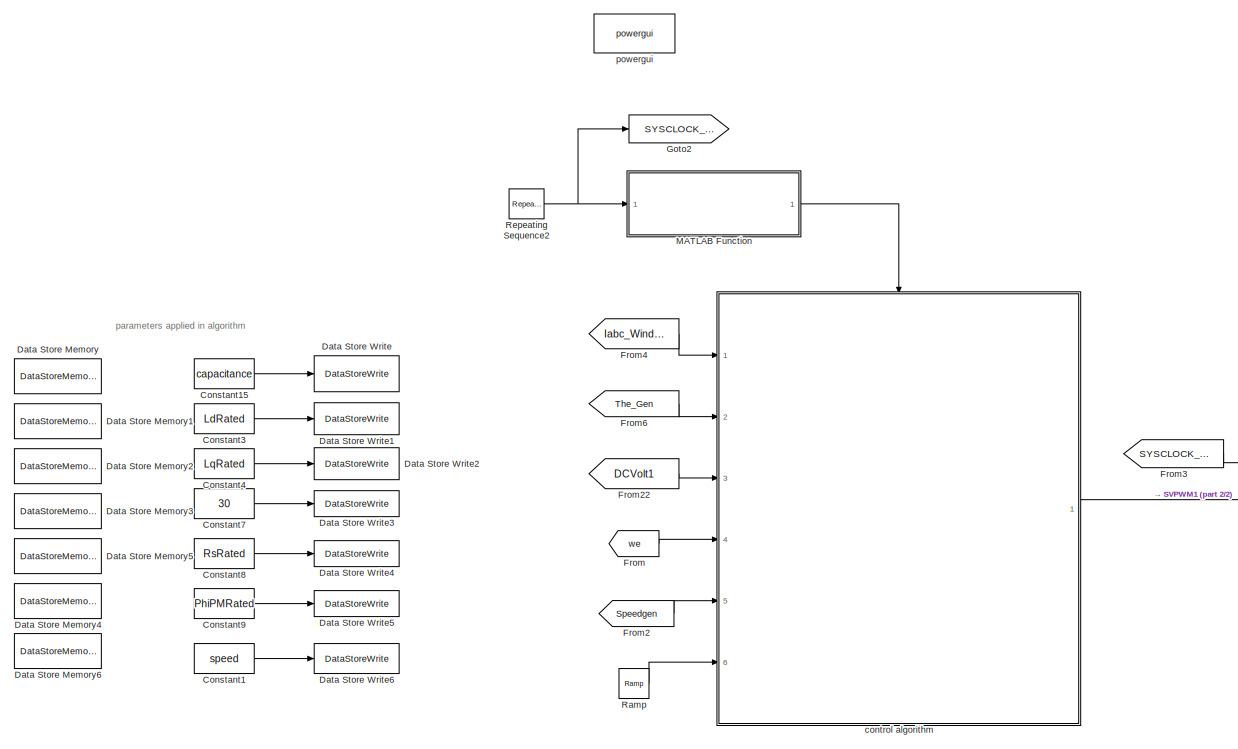
[diagram: root canvas - part 1/2, left side, full height]
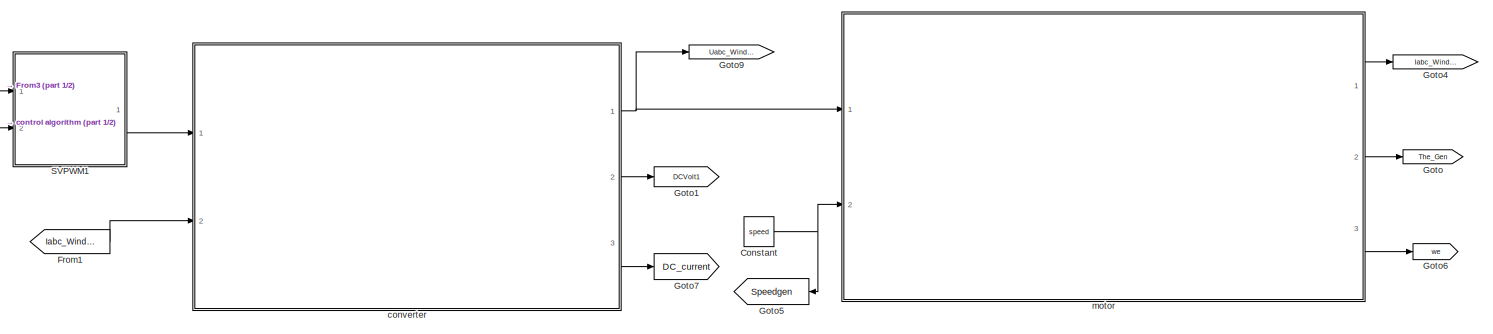
[diagram: root canvas - part 2/2, bottom right region]
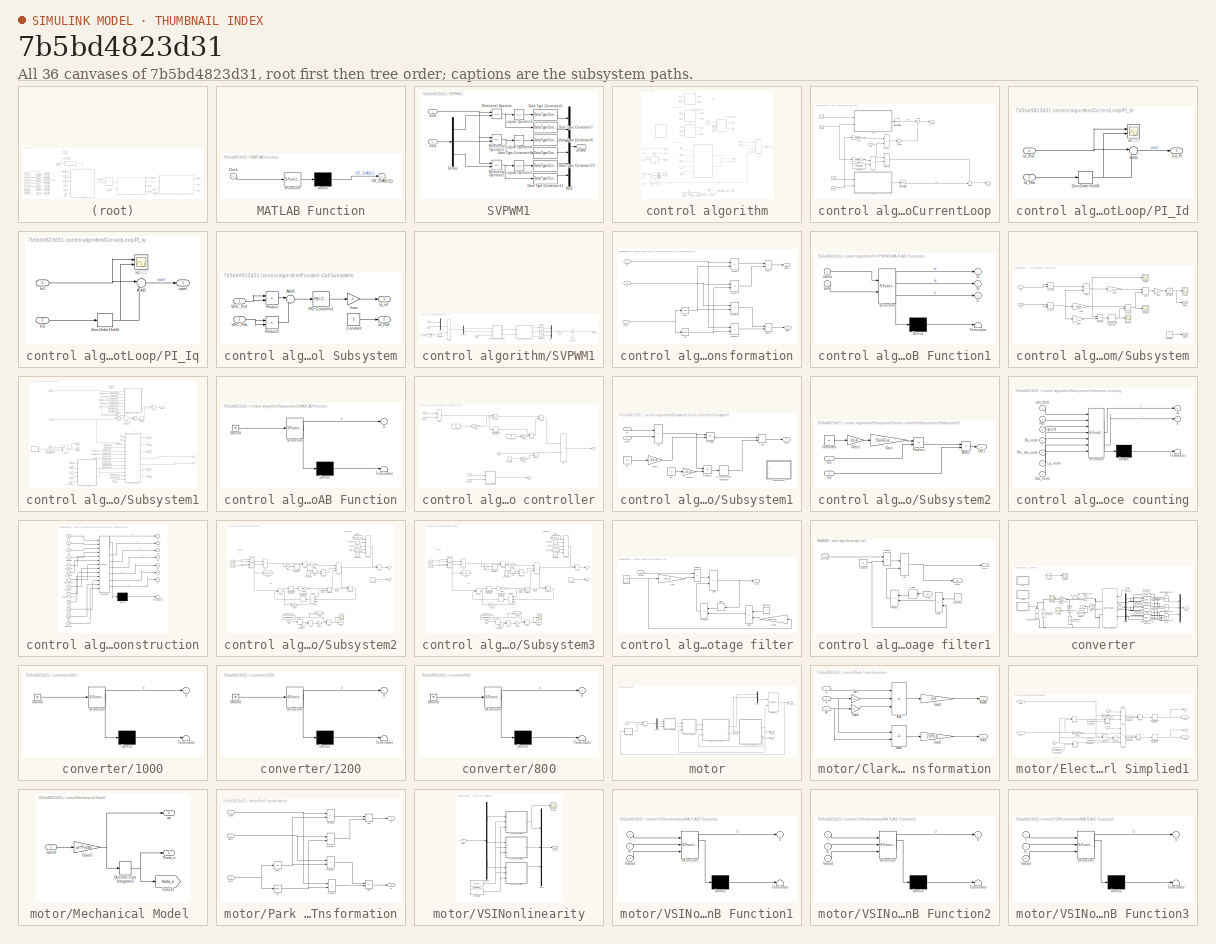
[diagram: thumbnail index - all 36 canvases of the model, root first then tree order]
MODEL slx_7b5bd4823d31
KIND model
CONFIG AbsTol = auto
CONFIG EnableMultiTasking = off
CONFIG FixedStep = 5e-7
CONFIG MaxStep = auto
CONFIG MinStep = auto
CONFIG RelTol = 1e-3
CONFIG SampleTimeConstraint = Unconstrained
CONFIG SolverName = FixedStepAuto
CONFIG StartTime = 0
CONFIG StopTime = 2
BLOCK [Constant] Constant
  SampleTime = TsimMotor
  Value = speed
BLOCK [Constant] Constant1
  SampleTime = TsimMotor
  Value = speed
BLOCK [Constant] Constant15
  SampleTime = TsimMotor
  Value = capacitance
BLOCK [Constant] Constant3
  SampleTime = TsimMotor
  Value = LdRated
BLOCK [Constant] Constant4
  SampleTime = TsimMotor
  Value = LqRated
BLOCK [Constant] Constant7
  SampleTime = TsimMotor
  Value = 30
BLOCK [Constant] Constant8
  SampleTime = TsimMotor
  Value = RsRated
BLOCK [Constant] Constant9
  SampleTime = TsimMotor
  Value = PhiPMRated
BLOCK [DataStoreMemory] Data Store Memory
  DataStoreName = capacitance_Ref
  ReadBeforeWriteMsg = warning
  ShowAdditionalParam = off
  WriteAfterReadMsg = warning
  WriteAfterWriteMsg = warning
BLOCK [DataStoreMemory] Data Store Memory1
  DataStoreName = Ld_Ref
  ReadBeforeWriteMsg = warning
  ShowAdditionalParam = off
  WriteAfterReadMsg = warning
  WriteAfterWriteMsg = warning
BLOCK [DataStoreMemory] Data Store Memory2
  DataStoreName = Lq_Ref
  ReadBeforeWriteMsg = warning
  ShowAdditionalParam = off
  WriteAfterReadMsg = warning
  WriteAfterWriteMsg = warning
BLOCK [DataStoreMemory] Data Store Memory3
  DataStoreName = Rdc_Ref
  ReadBeforeWriteMsg = warning
  ShowAdditionalParam = off
  WriteAfterReadMsg = warning
  WriteAfterWriteMsg = warning
BLOCK [DataStoreMemory] Data Store Memory4
  DataStoreName = PhiPM_Ref
  ReadBeforeWriteMsg = warning
  ShowAdditionalParam = off
  WriteAfterReadMsg = warning
  WriteAfterWriteMsg = warning
BLOCK [DataStoreMemory] Data Store Memory5
  DataStoreName = Rs_Ref
  ReadBeforeWriteMsg = warning
  ShowAdditionalParam = off
  WriteAfterReadMsg = warning
  WriteAfterWriteMsg = warning
BLOCK [DataStoreMemory] Data Store Memory6
  DataStoreName = speed_Ref
  ReadBeforeWriteMsg = warning
  ShowAdditionalParam = off
  WriteAfterReadMsg = warning
  WriteAfterWriteMsg = warning
BLOCK [DataStoreWrite] Data Store Write
  DataStoreName = capacitance_Ref
  Ports = [1]
BLOCK [DataStoreWrite] Data Store Write1
  DataStoreName = Ld_Ref
  Ports = [1]
BLOCK [DataStoreWrite] Data Store Write2
  DataStoreName = Lq_Ref
  Ports = [1]
BLOCK [DataStoreWrite] Data Store Write3
  DataStoreName = Rdc_Ref
  Ports = [1]
BLOCK [DataStoreWrite] Data Store Write4
  DataStoreName = Rs_Ref
  Ports = [1]
BLOCK [DataStoreWrite] Data Store Write5
  DataStoreName = PhiPM_Ref
  Ports = [1]
BLOCK [DataStoreWrite] Data Store Write6
  DataStoreName = speed_Ref
  Ports = [1]
BLOCK [From] From
  GotoTag = we
BLOCK [From] From1
  GotoTag = Iabc_Winding1
  TagVisibility = global
BLOCK [From] From2
  GotoTag = Speedgen
  TagVisibility = global
BLOCK [From] From22
  GotoTag = DCVolt1
  NameLocation = top
BLOCK [From] From3
  GotoTag = SYSCLOCK_10k
  TagVisibility = global
BLOCK [From] From4
  GotoTag = Iabc_Winding1
  NameLocation = top
  TagVisibility = global
BLOCK [From] From6
  GotoTag = The_Gen
  TagVisibility = global
BLOCK [Goto] Goto
  GotoTag = The_Gen
  TagVisibility = global
BLOCK [Goto] Goto1
  GotoTag = DCVolt1
BLOCK [Goto] Goto2
  GotoTag = SYSCLOCK_10k
  TagVisibility = global
BLOCK [Goto] Goto4
  GotoTag = Iabc_Winding1
  TagVisibility = global
BLOCK [Goto] Goto5
  GotoTag = Speedgen
  TagVisibility = global
BLOCK [Goto] Goto6
  GotoTag = we
BLOCK [Goto] Goto7
  GotoTag = DC_current
BLOCK [Goto] Goto9
  GotoTag = Uabc_Winding1
  TagVisibility = global
BLOCK [SubSystem] MATLAB Function
  ErrorFcn = Stateflow.Translate.translate
  PermitHierarchicalResolution = ExplicitOnly
  Ports = [1, 1]
  RequestExecContextInheritance = off
  SFBlockType = MATLAB Function
  TreatAsAtomicUnit = on
BLOCK [Demux] MATLAB Function/ Demux 
  Outputs = 1
  Ports = [1, 1]
BLOCK [S-Function] MATLAB Function/ SFunction 
  EnableBusSupport = on
  FunctionName = sf_sfun
  PortCounts = [1 1]
  Ports = [1, 1]
  SFcnIsStateOwnerBlock = off
  SFunctionDeploymentMode = off
  Tag = Stateflow S-Function 2
BLOCK [Inport] MATLAB Function/Clock
BLOCK [Outport] MATLAB Function/INT_ENABLE()
BLOCK [Reference] Ramp  REF=simulink/Sources/Ramp
  Ports = [0, 1]
  SourceBlock = simulink/Sources/Ramp
  SourceProductBaseCode = SL
  SourceType = Ramp
BLOCK [Reference] Repeating Sequence2  REF=simulink/Sources/Repeating
Sequence
  Ports = [0, 1]
  SourceBlock = simulink/Sources/Repeating\nSequence
  SourceProductBaseCode = SL
  SourceType = Repeating table
BLOCK [SubSystem] SVPWM1
  Ports = [2, 1]
  RequestExecContextInheritance = off
BLOCK [DataTypeConversion] SVPWM1/Data Type Conversion10
  OutDataTypeStr = double
  RndMeth = Floor
  SaturateOnIntegerOverflow = off
BLOCK [DataTypeConversion] SVPWM1/Data Type Conversion11
  OutDataTypeStr = double
  RndMeth = Floor
  SaturateOnIntegerOverflow = off
BLOCK [DataTypeConversion] SVPWM1/Data Type Conversion6
  OutDataTypeStr = double
  RndMeth = Floor
  SaturateOnIntegerOverflow = off
BLOCK [DataTypeConversion] SVPWM1/Data Type Conversion7
  OutDataTypeStr = double
  RndMeth = Floor
  SaturateOnIntegerOverflow = off
BLOCK [DataTypeConversion] SVPWM1/Data Type Conversion8
  OutDataTypeStr = double
  RndMeth = Floor
  SaturateOnIntegerOverflow = off
BLOCK [DataTypeConversion] SVPWM1/Data Type Conversion9
  OutDataTypeStr = double
  RndMeth = Floor
  SaturateOnIntegerOverflow = off
BLOCK [Demux] SVPWM1/Demux
  Outputs = 3
  Ports = [1, 3]
BLOCK [Logic] SVPWM1/Logical Operator1
  AllPortsSameDT = off
  Operator = NOT
  OutDataTypeStr = boolean
  Ports = [1, 1]
BLOCK [Logic] SVPWM1/Logical Operator3
  AllPortsSameDT = off
  Operator = NOT
  OutDataTypeStr = boolean
  Ports = [1, 1]
BLOCK [Logic] SVPWM1/Logical Operator4
  AllPortsSameDT = off
  Operator = NOT
  OutDataTypeStr = boolean
  Ports = [1, 1]
BLOCK [Mux] SVPWM1/Mux1
  DisplayOption = bar
  Inputs = 6
  Ports = [6, 1]
BLOCK [RelationalOperator] SVPWM1/Relational Operator
  InputSameDT = off
  OutDataTypeStr = boolean
  Ports = [2, 1]
  RndMeth = Simplest
BLOCK [RelationalOperator] SVPWM1/Relational Operator1
  InputSameDT = off
  OutDataTypeStr = boolean
  Ports = [2, 1]
  RndMeth = Simplest
BLOCK [RelationalOperator] SVPWM1/Relational Operator2
  InputSameDT = off
  OutDataTypeStr = boolean
  Ports = [2, 1]
  RndMeth = Simplest
BLOCK [Inport] SVPWM1/clock
BLOCK [Inport] SVPWM1/duty
  Port = 2
BLOCK [Outport] SVPWM1/ePWM
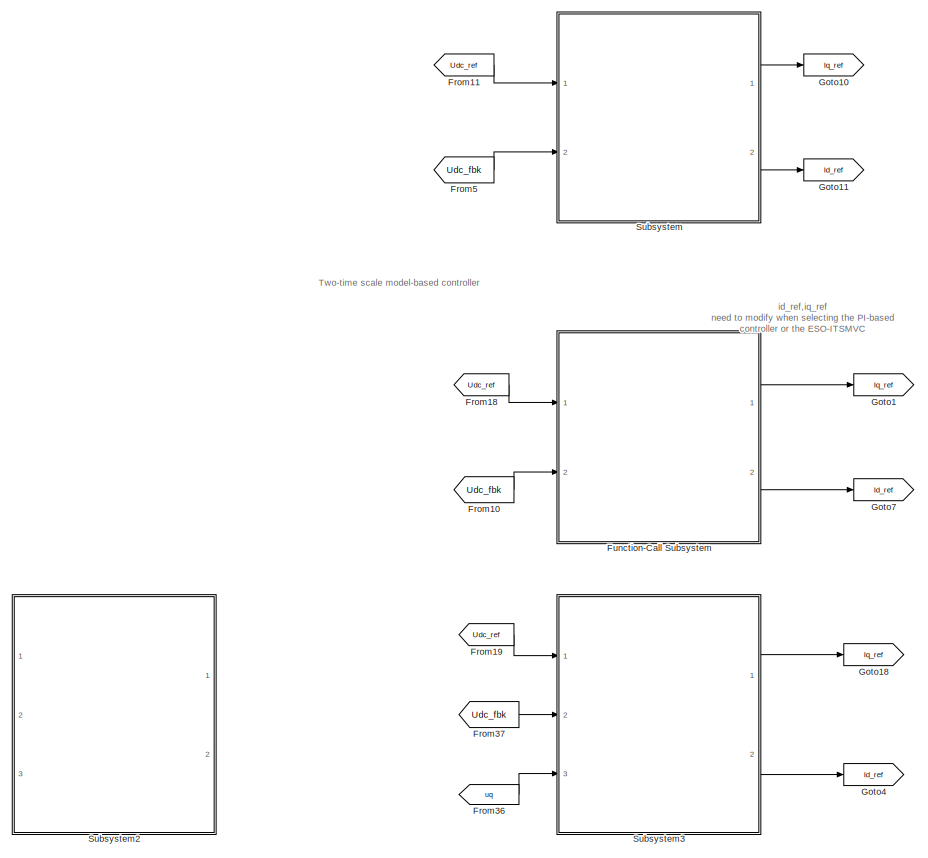
[diagram: control algorithm - part 1/6, top left region]
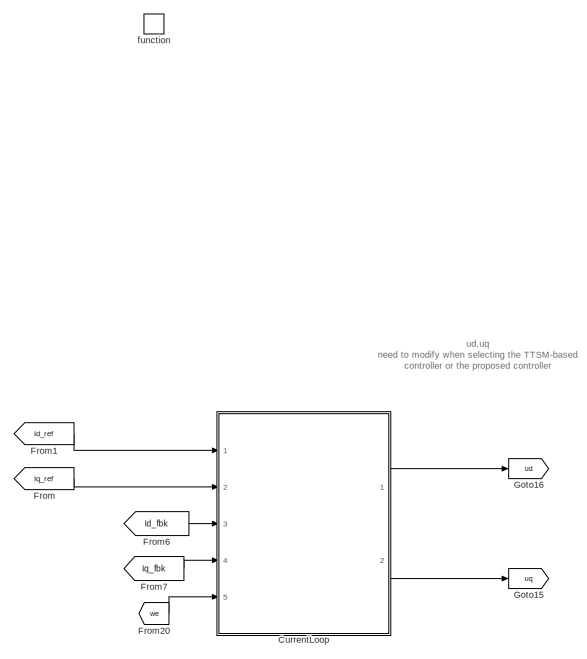
[diagram: control algorithm - part 2/6, top center region]
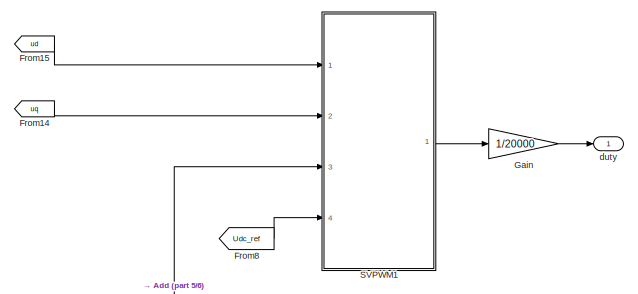
[diagram: control algorithm - part 3/6, middle right region]
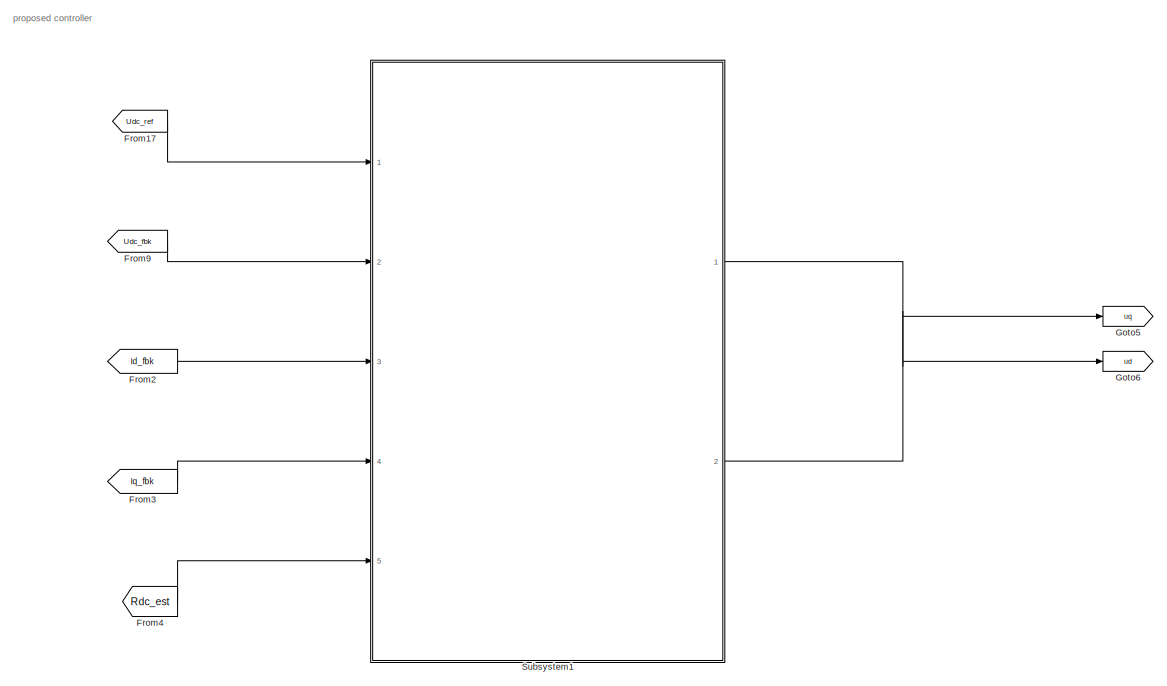
[diagram: control algorithm - part 4/6, central region]
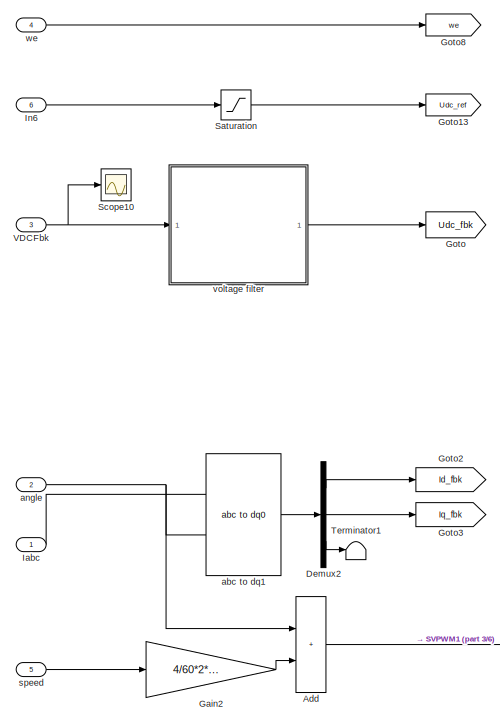
[diagram: control algorithm - part 5/6, bottom left region]
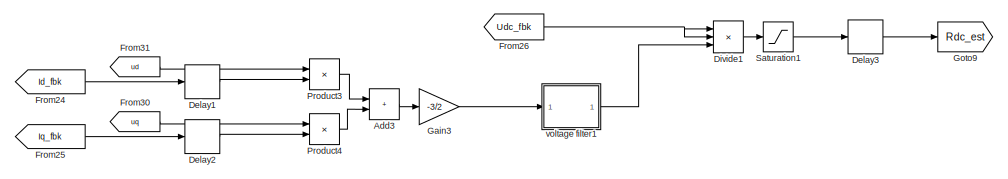
[diagram: control algorithm - part 6/6, bottom center region]
BLOCK [SubSystem] control algorithm
  Ports = [6, 1, 0, 1]
  RequestExecContextInheritance = off
  TreatAsAtomicUnit = on
BLOCK [Sum] control algorithm/Add
  IconShape = rectangular
  Ports = [2, 1]
BLOCK [Sum] control algorithm/Add3
  IconShape = rectangular
  Ports = [2, 1]
BLOCK [SubSystem] control algorithm/CurrentLoop
  Ports = [5, 2]
  RequestExecContextInheritance = off
BLOCK [Sum] control algorithm/CurrentLoop/Add
  IconShape = rectangular
  Ports = [2, 1]
BLOCK [Constant] control algorithm/CurrentLoop/Constant2
  SampleTime = -1
  Value = PhiPMRated
BLOCK [Gain] control algorithm/CurrentLoop/Gain
  Gain = LqRated
BLOCK [Gain] control algorithm/CurrentLoop/Gain2
  Gain = -1
BLOCK [Gain] control algorithm/CurrentLoop/Gain3
  Gain = LdRated
BLOCK [Inport] control algorithm/CurrentLoop/Id_Fbk
  Port = 3
BLOCK [Inport] control algorithm/CurrentLoop/Id_Ref
BLOCK [Inport] control algorithm/CurrentLoop/Iq_Fbk
  Port = 4
BLOCK [Inport] control algorithm/CurrentLoop/Iq_Ref
  Port = 2
BLOCK [Reference] control algorithm/CurrentLoop/PID Controller1  REF=slpidlib/PID Controller
  Ports = [1, 1]
  SourceBlock = slpidlib/PID Controller
  SourceProductBaseCode = SL
  SourceType = PID 1dof
BLOCK [Reference] control algorithm/CurrentLoop/PID Controller5  REF=slpidlib/PID Controller
  Ports = [1, 1]
  SourceBlock = slpidlib/PID Controller
  SourceProductBaseCode = SL
  SourceType = PID 1dof
BLOCK [SubSystem] control algorithm/CurrentLoop/PI_Id
  Ports = [2, 1]
  RequestExecContextInheritance = off
BLOCK [Sum] control algorithm/CurrentLoop/PI_Id/Add1
  Inputs = |+-
  Ports = [2, 1]
BLOCK [Inport] control algorithm/CurrentLoop/PI_Id/Id_Fbk
  Port = 2
BLOCK [Inport] control algorithm/CurrentLoop/PI_Id/Id_Ref
BLOCK [Outport] control algorithm/CurrentLoop/PI_Id/Ud_PI
BLOCK [ZeroOrderHold] control algorithm/CurrentLoop/PI_Id/Zero-Order Hold5
  SampleTime = -1
BLOCK [Scope] control algorithm/CurrentLoop/PI_Id/id实际值
  Floating = off
  NumInputPorts = 2
  Ports = [2]
  ScopeSpecificationString = Simulink.scopes.TimeScopeBlockCfg('CurrentConfiguration', extmgr.ConfigurationSet(extmgr.Configuration('Core','General UI',true),extmgr.Configuration('Core','Source UI',true),extmgr.Configuration('Sources','WiredSimulink',true,'DataLoggingVariableName','ScopeData12'),extmgr.Configuration('Visuals','Time Domain',true,'SerializedDisplays',{struct('MinYLimReal','-6.60951','MaxYLimReal','1.89339','YLa...<+1779ch>
BLOCK [SubSystem] control algorithm/CurrentLoop/PI_Iq
  Ports = [2, 1]
  RequestExecContextInheritance = off
BLOCK [Sum] control algorithm/CurrentLoop/PI_Iq/Add2
  Inputs = |+-
  Ports = [2, 1]
BLOCK [Inport] control algorithm/CurrentLoop/PI_Iq/In1
BLOCK [Inport] control algorithm/CurrentLoop/PI_Iq/In2
  Port = 2
BLOCK [ZeroOrderHold] control algorithm/CurrentLoop/PI_Iq/Zero-Order Hold1
  SampleTime = -1
BLOCK [Scope] control algorithm/CurrentLoop/PI_Iq/iq实际值
  Floating = off
  NumInputPorts = 2
  Ports = [2]
  ScopeSpecificationString = Simulink.scopes.TimeScopeBlockCfg('CurrentConfiguration', extmgr.ConfigurationSet(extmgr.Configuration('Core','General UI',true),extmgr.Configuration('Core','Source UI',true),extmgr.Configuration('Sources','WiredSimulink',true,'DataLoggingVariableName','ScopeData13'),extmgr.Configuration('Visuals','Time Domain',true,'SerializedDisplays',{struct('MinYLimReal','-52.50598','MaxYLimReal','5.834','YLab...<+1521ch>
BLOCK [Outport] control algorithm/CurrentLoop/PI_Iq/uqref
BLOCK [Product] control algorithm/CurrentLoop/Product
  Ports = [2, 1]
BLOCK [Product] control algorithm/CurrentLoop/Product3
  Ports = [2, 1]
BLOCK [Sum] control algorithm/CurrentLoop/Sum2
  Inputs = |++
  Ports = [2, 1]
BLOCK [Sum] control algorithm/CurrentLoop/Sum3
  Inputs = ++|
  Ports = [2, 1]
BLOCK [Outport] control algorithm/CurrentLoop/Ud_Ref
BLOCK [Outport] control algorithm/CurrentLoop/Uq_Ref
  Port = 2
BLOCK [Inport] control algorithm/CurrentLoop/we
  Port = 5
BLOCK [Delay] control algorithm/Delay1
  DelayLength = 1
  InputPortMap = u0
  Ports = [1, 1]
BLOCK [Delay] control algorithm/Delay2
  DelayLength = 1
  InputPortMap = u0
  Ports = [1, 1]
BLOCK [Delay] control algorithm/Delay3
  DelayLength = 1
  InputPortMap = u0
  Ports = [1, 1]
BLOCK [Demux] control algorithm/Demux2
  NameLocation = top
  Outputs = 3
  Ports = [1, 3]
BLOCK [Product] control algorithm/Divide1
  Inputs = **/
  Ports = [3, 1]
BLOCK [From] control algorithm/From
  GotoTag = Iq_ref
  TagVisibility = global
BLOCK [From] control algorithm/From1
  GotoTag = Id_ref
  TagVisibility = global
BLOCK [From] control algorithm/From10
  GotoTag = Udc_fbk
BLOCK [From] control algorithm/From11
  GotoTag = Udc_ref
BLOCK [From] control algorithm/From14
  GotoTag = uq
BLOCK [From] control algorithm/From15
  GotoTag = ud
BLOCK [From] control algorithm/From17
  GotoTag = Udc_ref
BLOCK [From] control algorithm/From18
  GotoTag = Udc_ref
BLOCK [From] control algorithm/From19
  GotoTag = Udc_ref
BLOCK [From] control algorithm/From2
  GotoTag = Id_fbk
BLOCK [From] control algorithm/From20
  GotoTag = we
BLOCK [From] control algorithm/From24
  GotoTag = Id_fbk
BLOCK [From] control algorithm/From25
  GotoTag = Iq_fbk
BLOCK [From] control algorithm/From26
  GotoTag = Udc_fbk
BLOCK [From] control algorithm/From3
  GotoTag = Iq_fbk
BLOCK [From] control algorithm/From30
  GotoTag = uq
BLOCK [From] control algorithm/From31
  GotoTag = ud
BLOCK [From] control algorithm/From36
  GotoTag = uq
BLOCK [From] control algorithm/From37
  GotoTag = Udc_fbk
BLOCK [From] control algorithm/From4
  GotoTag = Rdc_est
BLOCK [From] control algorithm/From5
  GotoTag = Udc_fbk
BLOCK [From] control algorithm/From6
  GotoTag = Id_fbk
BLOCK [From] control algorithm/From7
  GotoTag = Iq_fbk
BLOCK [From] control algorithm/From8
  GotoTag = Udc_ref
BLOCK [From] control algorithm/From9
  GotoTag = Udc_fbk
BLOCK [SubSystem] control algorithm/Function-Call Subsystem
  Ports = [2, 2]
  RequestExecContextInheritance = off
  TreatAsAtomicUnit = on
BLOCK [Sum] control algorithm/Function-Call Subsystem/Add3
  Inputs = |+-
  Ports = [2, 1]
BLOCK [Constant] control algorithm/Function-Call Subsystem/Constant
  SampleTime = -1
  Value = 0
BLOCK [Gain] control algorithm/Function-Call Subsystem/Gain
  Gain = -1
BLOCK [Outport] control algorithm/Function-Call Subsystem/Id_Ref
  Port = 2
BLOCK [Outport] control algorithm/Function-Call Subsystem/Iq_ref
BLOCK [Reference] control algorithm/Function-Call Subsystem/PID Controller1  REF=slpidlib/PID Controller
  Ports = [1, 1]
  SourceBlock = slpidlib/PID Controller
  SourceProductBaseCode = SL
  SourceType = PID 1dof
BLOCK [Product] control algorithm/Function-Call Subsystem/Product
  Ports = [2, 1]
BLOCK [Product] control algorithm/Function-Call Subsystem/Product1
  Ports = [2, 1]
BLOCK [Inport] control algorithm/Function-Call Subsystem/VDC_Fbk
  Port = 2
BLOCK [Inport] control algorithm/Function-Call Subsystem/VDC_Ref
BLOCK [Gain] control algorithm/Gain
  Gain = 1/20000
BLOCK [Gain] control algorithm/Gain2
  Gain = 4/60*2*pi*0.0001*1.5
BLOCK [Gain] control algorithm/Gain3
  Gain = -3/2
BLOCK [Goto] control algorithm/Goto
  GotoTag = Udc_fbk
BLOCK [Goto] control algorithm/Goto1
  Commented = on
  GotoTag = Iq_ref
  TagVisibility = global
BLOCK [Goto] control algorithm/Goto10
  Commented = on
  GotoTag = Iq_ref
  TagVisibility = global
BLOCK [Goto] control algorithm/Goto11
  Commented = on
  GotoTag = Id_ref
  TagVisibility = global
BLOCK [Goto] control algorithm/Goto13
  GotoTag = Udc_ref
BLOCK [Goto] control algorithm/Goto15
  GotoTag = uq
BLOCK [Goto] control algorithm/Goto16
  GotoTag = ud
BLOCK [Goto] control algorithm/Goto18
  GotoTag = Iq_ref
  TagVisibility = global
BLOCK [Goto] control algorithm/Goto2
  GotoTag = Id_fbk
BLOCK [Goto] control algorithm/Goto3
  GotoTag = Iq_fbk
BLOCK [Goto] control algorithm/Goto4
  GotoTag = Id_ref
  TagVisibility = global
BLOCK [Goto] control algorithm/Goto5
  Commented = on
  GotoTag = uq
BLOCK [Goto] control algorithm/Goto6
  Commented = on
  GotoTag = ud
BLOCK [Goto] control algorithm/Goto7
  Commented = on
  GotoTag = Id_ref
  TagVisibility = global
BLOCK [Goto] control algorithm/Goto8
  GotoTag = we
BLOCK [Goto] control algorithm/Goto9
  GotoTag = Rdc_est
BLOCK [Inport] control algorithm/Iabc
BLOCK [Inport] control algorithm/In6
  Port = 6
BLOCK [Product] control algorithm/Product3
  Ports = [2, 1]
BLOCK [Product] control algorithm/Product4
  Ports = [2, 1]
BLOCK [SubSystem] control algorithm/SVPWM1
  Ports = [4, 1]
  RequestExecContextInheritance = off
BLOCK [Constant] control algorithm/SVPWM1/Constant
  NameLocation = right
  SampleTime = -1
  Value = 0.5
BLOCK [Demux] control algorithm/SVPWM1/Demux
  Outputs = 2
  Ports = [1, 2]
BLOCK [Product] control algorithm/SVPWM1/Divide
  Inputs = */
  Ports = [2, 1]
BLOCK [Outport] control algorithm/SVPWM1/Duty
BLOCK [Gain] control algorithm/SVPWM1/Gain
  Gain = 1/sqrt(3)
BLOCK [Gain] control algorithm/SVPWM1/Gain4
  Gain = 0.5
BLOCK [SubSystem] control algorithm/SVPWM1/Inverse Park Transformation
  Ports = [3, 2]
  RequestExecContextInheritance = off
BLOCK [Outport] control algorithm/SVPWM1/Inverse Park Transformation/Alpha
BLOCK [Outport] control algorithm/SVPWM1/Inverse Park Transformation/Beta
  Port = 2
BLOCK [Inport] control algorithm/SVPWM1/Inverse Park Transformation/D
BLOCK [Product] control algorithm/SVPWM1/Inverse Park Transformation/Product
  OutDataTypeStr = Inherit: Same as first input
  Ports = [2, 1]
BLOCK [Product] control algorithm/SVPWM1/Inverse Park Transformation/Product1
  OutDataTypeStr = Inherit: Same as first input
  Ports = [2, 1]
BLOCK [Product] control algorithm/SVPWM1/Inverse Park Transformation/Product2
  OutDataTypeStr = Inherit: Same as first input
  Ports = [2, 1]
BLOCK [Product] control algorithm/SVPWM1/Inverse Park Transformation/Product3
  OutDataTypeStr = Inherit: Same as first input
  Ports = [2, 1]
BLOCK [Inport] control algorithm/SVPWM1/Inverse Park Transformation/Q
  Port = 2
BLOCK [Trigonometry] control algorithm/SVPWM1/Inverse Park Transformation/Sin
  OutputSignalType = real
  Ports = [1, 1]
BLOCK [Trigonometry] control algorithm/SVPWM1/Inverse Park Transformation/Sin1
  Operator = cos
  OutputSignalType = real
  Ports = [1, 1]
BLOCK [Sum] control algorithm/SVPWM1/Inverse Park Transformation/Sum1
  AccumDataTypeStr = Inherit: Same as first input
  IconShape = rectangular
  Inputs = |++
  OutDataTypeStr = Inherit: Same as first input
  Ports = [2, 1]
BLOCK [Sum] control algorithm/SVPWM1/Inverse Park Transformation/Sum2
  AccumDataTypeStr = Inherit: Same as first input
  IconShape = rectangular
  Inputs = |+-
  OutDataTypeStr = Inherit: Same as first input
  Ports = [2, 1]
BLOCK [Inport] control algorithm/SVPWM1/Inverse Park Transformation/theta
  Port = 3
BLOCK [SubSystem] control algorithm/SVPWM1/MATLAB Function1
  ErrorFcn = Stateflow.Translate.translate
  PermitHierarchicalResolution = ExplicitOnly
  Ports = [2, 3]
  RequestExecContextInheritance = off
  SFBlockType = MATLAB Function
  TreatAsAtomicUnit = on
BLOCK [Demux] control algorithm/SVPWM1/MATLAB Function1/ Demux 
  Outputs = 1
  Ports = [1, 1]
BLOCK [S-Function] control algorithm/SVPWM1/MATLAB Function1/ SFunction 
  EnableBusSupport = on
  FunctionName = sf_sfun
  PortCounts = [2 4]
  Ports = [2, 4]
  SFcnIsStateOwnerBlock = off
  SFunctionDeploymentMode = off
  Tag = Stateflow S-Function 6
BLOCK [Terminator] control algorithm/SVPWM1/MATLAB Function1/ Terminator 
BLOCK [Inport] control algorithm/SVPWM1/MATLAB Function1/alpha
BLOCK [Inport] control algorithm/SVPWM1/MATLAB Function1/beta
  Port = 2
BLOCK [Outport] control algorithm/SVPWM1/MATLAB Function1/ta
BLOCK [Outport] control algorithm/SVPWM1/MATLAB Function1/tb
  Port = 2
BLOCK [Outport] control algorithm/SVPWM1/MATLAB Function1/tc
  Port = 3
BLOCK [Mux] control algorithm/SVPWM1/Mux
  DisplayOption = bar
  Inputs = 2
  Ports = [2, 1]
BLOCK [Mux] control algorithm/SVPWM1/Mux1
  DisplayOption = bar
  Inputs = 3
  Ports = [3, 1]
BLOCK [Saturate] control algorithm/SVPWM1/Saturation2
  LowerLimit = 10
  UpperLimit = 800
BLOCK [Sum] control algorithm/SVPWM1/Sum
  Inputs = |++
  Ports = [2, 1]
BLOCK [Inport] control algorithm/SVPWM1/Theta
  Port = 3
BLOCK [Inport] control algorithm/SVPWM1/Ud
BLOCK [Inport] control algorithm/SVPWM1/Udc_fbk
  Port = 4
BLOCK [UnitDelay] control algorithm/SVPWM1/Unit Delay
  HasFrameUpgradeWarning = on
  SampleTime = -1
BLOCK [UnitDelay] control algorithm/SVPWM1/Unit Delay1
  HasFrameUpgradeWarning = on
  SampleTime = -1
BLOCK [UnitDelay] control algorithm/SVPWM1/Unit Delay2
  HasFrameUpgradeWarning = on
  SampleTime = -1
BLOCK [Inport] control algorithm/SVPWM1/Uq
  Port = 2
BLOCK [Saturate] control algorithm/Saturation
  LowerLimit = 0
  UpperLimit = 48
BLOCK [Saturate] control algorithm/Saturation1
  LowerLimit = 10
  UpperLimit = 100
BLOCK [Scope] control algorithm/Scope10
  Floating = off
  NumInputPorts = 1
  Ports = [1]
  ScopeSpecificationString = Simulink.scopes.TimeScopeBlockCfg('CurrentConfiguration', extmgr.ConfigurationSet(extmgr.Configuration('Core','General UI',true),extmgr.Configuration('Core','Source UI',true),extmgr.Configuration('Sources','WiredSimulink',true,'DataLoggingVariableName','a','DataLogging',true,'DataLoggingSaveFormat','Array'),extmgr.Configuration('Visuals','Time Domain',true,'SerializedDisplays',{struct('MinYLimReal...<+1551ch>
BLOCK [SubSystem] control algorithm/Subsystem
  Ports = [2, 2]
  RequestExecContextInheritance = off
BLOCK [Sum] control algorithm/Subsystem/Add1
  IconShape = rectangular
  Inputs = +-
  Ports = [2, 1]
BLOCK [Sum] control algorithm/Subsystem/Add2
  IconShape = rectangular
  Ports = [2, 1]
BLOCK [Constant] control algorithm/Subsystem/Constant
  Value = 0
BLOCK [DiscreteIntegrator] control algorithm/Subsystem/Discrete-Time Integrator
  ICPrevOutput = DiscIntNeverNeededParam
  ICPrevScaledInput = DiscIntNeverNeededParam
  InitialConditionSetting = Auto
  Ports = [1, 1]
  SampleTime = -1
  gainval = 1
BLOCK [Gain] control algorithm/Subsystem/Gain5
  Gain = k
BLOCK [Gain] control algorithm/Subsystem/Gain6
  Gain = capacitance
BLOCK [Gain] control algorithm/Subsystem/Gain7
  Gain = n
BLOCK [Gain] control algorithm/Subsystem/Gain9
  Gain = -1
BLOCK [Inport] control algorithm/Subsystem/In1
BLOCK [Inport] control algorithm/Subsystem/In2
  Port = 2
BLOCK [Outport] control algorithm/Subsystem/Output
BLOCK [Outport] control algorithm/Subsystem/Output1
  Port = 2
BLOCK [Product] control algorithm/Subsystem/Product
  Ports = [2, 1]
BLOCK [Product] control algorithm/Subsystem/Product1
  Ports = [2, 1]
BLOCK [Product] control algorithm/Subsystem/Product2
  Ports = [2, 1]
BLOCK [Product] control algorithm/Subsystem/Product5
  Ports = [2, 1]
BLOCK [Saturate] control algorithm/Subsystem/Saturation2
  LowerLimit = -20
  UpperLimit = 20
BLOCK [Scope] control algorithm/Subsystem/Scope
  Floating = off
  NumInputPorts = 1
  Ports = [1]
  ScopeSpecificationString = Simulink.scopes.TimeScopeBlockCfg('CurrentConfiguration', extmgr.ConfigurationSet(extmgr.Configuration('Core','General UI',true),extmgr.Configuration('Core','Source UI',true),extmgr.Configuration('Sources','WiredSimulink',true,'DataLoggingVariableName','ScopeData5'),extmgr.Configuration('Visuals','Time Domain',true,'SerializedDisplays',{struct('MinYLimReal','-16.15806','MaxYLimReal','3.07429','YLa...<+1513ch>
BLOCK [Scope] control algorithm/Subsystem/Scope1
  Floating = off
  NumInputPorts = 1
  Ports = [1]
  ScopeSpecificationString = Simulink.scopes.TimeScopeBlockCfg('CurrentConfiguration', extmgr.ConfigurationSet(extmgr.Configuration('Core','General UI',true),extmgr.Configuration('Core','Source UI',true),extmgr.Configuration('Sources','WiredSimulink',true,'DataLoggingVariableName','ScopeData6'),extmgr.Configuration('Visuals','Time Domain',true,'SerializedDisplays',{struct('MinYLimReal','-2182.53345','MaxYLimReal','2548.90588'...<+1456ch>
BLOCK [Scope] control algorithm/Subsystem/Scope2
  Floating = off
  NumInputPorts = 1
  Ports = [1]
  ScopeSpecificationString = Simulink.scopes.TimeScopeBlockCfg('CurrentConfiguration', extmgr.ConfigurationSet(extmgr.Configuration('Core','General UI',true),extmgr.Configuration('Core','Source UI',true),extmgr.Configuration('Sources','WiredSimulink',true,'DataLoggingVariableName','ScopeData7'),extmgr.Configuration('Visuals','Time Domain',true,'SerializedDisplays',{struct('MinYLimReal','-1.00000','MaxYLimReal','1.00000','YLab...<+1454ch>
BLOCK [Scope] control algorithm/Subsystem/Scope3
  Floating = off
  NumInputPorts = 1
  Ports = [1]
  ScopeSpecificationString = Simulink.scopes.TimeScopeBlockCfg('CurrentConfiguration', extmgr.ConfigurationSet(extmgr.Configuration('Core','General UI',true),extmgr.Configuration('Core','Source UI',true),extmgr.Configuration('Sources','WiredSimulink',true,'DataLoggingVariableName','ScopeData8'),extmgr.Configuration('Visuals','Time Domain',true,'SerializedDisplays',{struct('MinYLimReal','-42.72373','MaxYLimReal','384.51361','Y...<+1448ch>
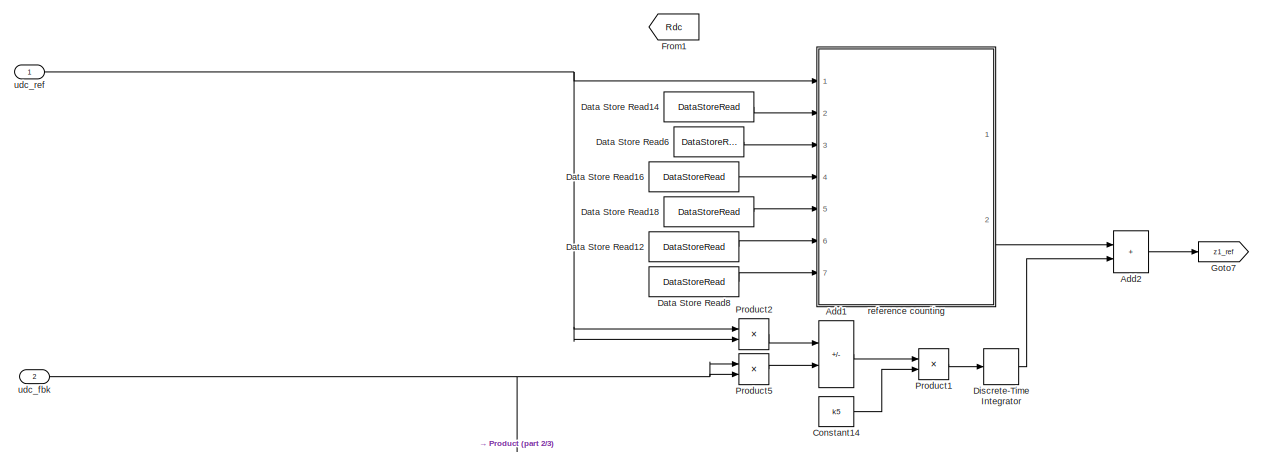
[diagram: control algorithm/Subsystem1 - part 1/3, top center region]
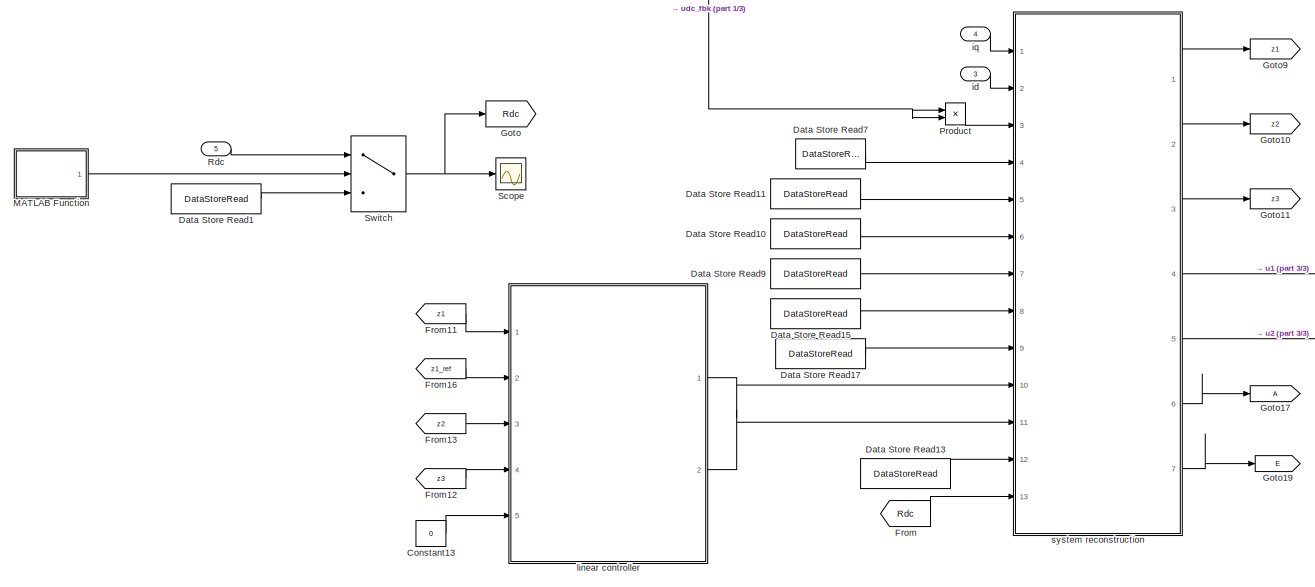
[diagram: control algorithm/Subsystem1 - part 2/3, full width, bottom band]
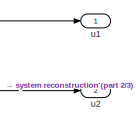
[diagram: control algorithm/Subsystem1 - part 3/3, bottom right region]
BLOCK [SubSystem] control algorithm/Subsystem1
  Ports = [5, 2]
  RequestExecContextInheritance = off
BLOCK [Sum] control algorithm/Subsystem1/Add1
  IconShape = rectangular
  Inputs = +-
  Ports = [2, 1]
BLOCK [Sum] control algorithm/Subsystem1/Add2
  IconShape = rectangular
  Ports = [2, 1]
BLOCK [Constant] control algorithm/Subsystem1/Constant13
  SampleTime = -1
  Value = 0
BLOCK [Constant] control algorithm/Subsystem1/Constant14
  SampleTime = -1
  Value = k5
BLOCK [DataStoreRead] control algorithm/Subsystem1/Data Store Read1
  DataStoreName = Rdc_Ref
  Ports = [0, 1]
BLOCK [DataStoreRead] control algorithm/Subsystem1/Data Store Read10
  DataStoreName = Ld_Ref
  Ports = [0, 1]
BLOCK [DataStoreRead] control algorithm/Subsystem1/Data Store Read11
  DataStoreName = Lq_Ref
  Ports = [0, 1]
BLOCK [DataStoreRead] control algorithm/Subsystem1/Data Store Read12
  DataStoreName = Lq_Ref
  Ports = [0, 1]
BLOCK [DataStoreRead] control algorithm/Subsystem1/Data Store Read13
  DataStoreName = Rdc_Ref
  Ports = [0, 1]
BLOCK [DataStoreRead] control algorithm/Subsystem1/Data Store Read14
  DataStoreName = Rdc_Ref
  Ports = [0, 1]
BLOCK [DataStoreRead] control algorithm/Subsystem1/Data Store Read15
  DataStoreName = Rs_Ref
  Ports = [0, 1]
BLOCK [DataStoreRead] control algorithm/Subsystem1/Data Store Read16
  DataStoreName = Rs_Ref
  Ports = [0, 1]
BLOCK [DataStoreRead] control algorithm/Subsystem1/Data Store Read17
  DataStoreName = PhiPM_Ref
  Ports = [0, 1]
BLOCK [DataStoreRead] control algorithm/Subsystem1/Data Store Read18
  DataStoreName = PhiPM_Ref
  Ports = [0, 1]
BLOCK [DataStoreRead] control algorithm/Subsystem1/Data Store Read6
  DataStoreName = speed_Ref
  Ports = [0, 1]
BLOCK [DataStoreRead] control algorithm/Subsystem1/Data Store Read7
  DataStoreName = speed_Ref
  Ports = [0, 1]
BLOCK [DataStoreRead] control algorithm/Subsystem1/Data Store Read8
  DataStoreName = capacitance_Ref
  Ports = [0, 1]
BLOCK [DataStoreRead] control algorithm/Subsystem1/Data Store Read9
  DataStoreName = capacitance_Ref
  Ports = [0, 1]
BLOCK [DiscreteIntegrator] control algorithm/Subsystem1/Discrete-Time Integrator
  ICPrevOutput = DiscIntNeverNeededParam
  ICPrevScaledInput = DiscIntNeverNeededParam
  InitialConditionSetting = Auto
  Ports = [1, 1]
  SampleTime = -1
BLOCK [From] control algorithm/Subsystem1/From
  GotoTag = Rdc
BLOCK [From] control algorithm/Subsystem1/From1
  GotoTag = Rdc
BLOCK [From] control algorithm/Subsystem1/From11
  GotoTag = z1
BLOCK [From] control algorithm/Subsystem1/From12
  GotoTag = z3
BLOCK [From] control algorithm/Subsystem1/From13
  GotoTag = z2
BLOCK [From] control algorithm/Subsystem1/From16
  GotoTag = z1_ref
BLOCK [Goto] control algorithm/Subsystem1/Goto
  GotoTag = Rdc
BLOCK [Goto] control algorithm/Subsystem1/Goto10
  GotoTag = z2
BLOCK [Goto] control algorithm/Subsystem1/Goto11
  GotoTag = z3
BLOCK [Goto] control algorithm/Subsystem1/Goto17
BLOCK [Goto] control algorithm/Subsystem1/Goto19
  GotoTag = E
BLOCK [Goto] control algorithm/Subsystem1/Goto7
  GotoTag = z1_ref
BLOCK [Goto] control algorithm/Subsystem1/Goto9
  GotoTag = z1
BLOCK [SubSystem] control algorithm/Subsystem1/MATLAB Function
  ErrorFcn = Stateflow.Translate.translate
  PermitHierarchicalResolution = ExplicitOnly
  Ports = [0, 1]
  RequestExecContextInheritance = off
  SFBlockType = MATLAB Function
  TreatAsAtomicUnit = on
BLOCK [Demux] control algorithm/Subsystem1/MATLAB Function/ Demux 
  Outputs = 1
  Ports = [1, 1]
BLOCK [Ground] control algorithm/Subsystem1/MATLAB Function/ Ground 
BLOCK [S-Function] control algorithm/Subsystem1/MATLAB Function/ SFunction 
  EnableBusSupport = on
  FunctionName = sf_sfun
  PortCounts = [1 2]
  Ports = [1, 2]
  SFcnIsStateOwnerBlock = off
  SFunctionDeploymentMode = off
  Tag = Stateflow S-Function 4
BLOCK [Terminator] control algorithm/Subsystem1/MATLAB Function/ Terminator 
BLOCK [Outport] control algorithm/Subsystem1/MATLAB Function/y
BLOCK [Product] control algorithm/Subsystem1/Product
  Ports = [2, 1]
BLOCK [Product] control algorithm/Subsystem1/Product1
  Ports = [2, 1]
BLOCK [Product] control algorithm/Subsystem1/Product2
  Ports = [2, 1]
BLOCK [Product] control algorithm/Subsystem1/Product5
  Ports = [2, 1]
BLOCK [Inport] control algorithm/Subsystem1/Rdc
  Port = 5
BLOCK [Scope] control algorithm/Subsystem1/Scope
  Floating = off
  NumInputPorts = 1
  Ports = [1]
  ScopeSpecificationString = Simulink.scopes.TimeScopeBlockCfg('CurrentConfiguration', extmgr.ConfigurationSet(extmgr.Configuration('Core','General UI',true),extmgr.Configuration('Core','Source UI',true),extmgr.Configuration('Sources','WiredSimulink',true,'DataLoggingVariableName','ScopeData3'),extmgr.Configuration('Visuals','Time Domain',true,'SerializedDisplays',{struct('MinYLimReal','7.5','MaxYLimReal','32.5','YLabelReal',...<+1360ch>
BLOCK [Switch] control algorithm/Subsystem1/Switch
  Criteria = u2 > Threshold
  InputSameDT = off
  SaturateOnIntegerOverflow = off
BLOCK [Inport] control algorithm/Subsystem1/id
  Port = 3
BLOCK [Inport] control algorithm/Subsystem1/iq
  Port = 4
BLOCK [SubSystem] control algorithm/Subsystem1/linear controller
  Ports = [5, 2]
  RequestExecContextInheritance = off
BLOCK [Sum] control algorithm/Subsystem1/linear controller/Add
  IconShape = rectangular
  Inputs = +-
  Ports = [2, 1]
BLOCK [Sum] control algorithm/Subsystem1/linear controller/Add1
  IconShape = rectangular
  Ports = [2, 1]
BLOCK [Sum] control algorithm/Subsystem1/linear controller/Add2
  IconShape = rectangular
  Ports = [2, 1]
BLOCK [Constant] control algorithm/Subsystem1/linear controller/Constant
  SampleTime = -1
  Value = k2
BLOCK [Constant] control algorithm/Subsystem1/linear controller/Constant2
  SampleTime = -1
  Value = k0
BLOCK [Constant] control algorithm/Subsystem1/linear controller/Constant3
  SampleTime = -1
  Value = k1
BLOCK [DiscreteIntegrator] control algorithm/Subsystem1/linear controller/Discrete-Time Integrator
  ICPrevOutput = DiscIntNeverNeededParam
  ICPrevScaledInput = DiscIntNeverNeededParam
  InitialConditionSetting = Auto
  Ports = [1, 1]
  SampleTime = -1
BLOCK [Gain] control algorithm/Subsystem1/linear controller/Gain
  Gain = -1e-4
BLOCK [Gain] control algorithm/Subsystem1/linear controller/Gain1
  Gain = -1e-4
BLOCK [Gain] control algorithm/Subsystem1/linear controller/Gain2
  Gain = -1e-4
BLOCK [Product] control algorithm/Subsystem1/linear controller/Product
  Ports = [2, 1]
BLOCK [Product] control algorithm/Subsystem1/linear controller/Product1
  Ports = [2, 1]
BLOCK [Product] control algorithm/Subsystem1/linear controller/Product2
  Ports = [2, 1]
BLOCK [SubSystem] control algorithm/Subsystem1/linear controller/Subsystem1
  Ports = [2, 1]
  RequestExecContextInheritance = off
BLOCK [Sum] control algorithm/Subsystem1/linear controller/Subsystem1/Add
  IconShape = rectangular
  Inputs = +-
  Ports = [2, 1]
BLOCK [Sum] control algorithm/Subsystem1/linear controller/Subsystem1/Add1
  IconShape = rectangular
  Ports = [2, 1]
BLOCK [DiscreteIntegrator] control algorithm/Subsystem1/linear controller/Subsystem1/Discrete-Time Integrator
  ICPrevOutput = DiscIntNeverNeededParam
  ICPrevScaledInput = DiscIntNeverNeededParam
  InitialConditionSetting = Auto
  Ports = [1, 1]
  SampleTime = -1
BLOCK [Gain] control algorithm/Subsystem1/linear controller/Subsystem1/Gain
  Gain = -1e-4
BLOCK [Gain] control algorithm/Subsystem1/linear controller/Subsystem1/Gain2
  Gain = -1e-4
BLOCK [Outport] control algorithm/Subsystem1/linear controller/Subsystem1/Out1
BLOCK [Product] control algorithm/Subsystem1/linear controller/Subsystem1/Product
  Ports = [2, 1]
BLOCK [Product] control algorithm/Subsystem1/linear controller/Subsystem1/Product1
  Ports = [2, 1]
BLOCK [SubSystem] control algorithm/Subsystem1/linear controller/Subsystem1/Subsystem2
  Commented = on
  Ports = [2, 1]
  RequestExecContextInheritance = off
BLOCK [Sum] control algorithm/Subsystem1/linear controller/Subsystem1/Subsystem2/Add2
  IconShape = rectangular
  Ports = [2, 1]
BLOCK [Constant] control algorithm/Subsystem1/linear controller/Subsystem1/Subsystem2/Constant
  Value = k4
BLOCK [Gain] control algorithm/Subsystem1/linear controller/Subsystem1/Subsystem2/Gain
  Gain = TsimCurLoop
BLOCK [Gain] control algorithm/Subsystem1/linear controller/Subsystem1/Subsystem2/Gain1
  Gain = -1e-4
BLOCK [Inport] control algorithm/Subsystem1/linear controller/Subsystem1/Subsystem2/In1
BLOCK [Inport] control algorithm/Subsystem1/linear controller/Subsystem1/Subsystem2/In2
  Port = 2
BLOCK [Outport] control algorithm/Subsystem1/linear controller/Subsystem1/Subsystem2/Out1
BLOCK [Product] control algorithm/Subsystem1/linear controller/Subsystem1/Subsystem2/Product
  Ports = [2, 1]
BLOCK [Constant] control algorithm/Subsystem1/linear controller/Subsystem1/k3
  SampleTime = -1
  Value = k3
BLOCK [Constant] control algorithm/Subsystem1/linear controller/Subsystem1/k4
  SampleTime = -1
  Value = k4
BLOCK [Inport] control algorithm/Subsystem1/linear controller/Subsystem1/z3
BLOCK [Inport] control algorithm/Subsystem1/linear controller/Subsystem1/z3_ref
  Port = 2
BLOCK [Outport] control algorithm/Subsystem1/linear controller/v1
BLOCK [Outport] control algorithm/Subsystem1/linear controller/v2
  Port = 2
BLOCK [Inport] control algorithm/Subsystem1/linear controller/z1
BLOCK [Inport] control algorithm/Subsystem1/linear controller/z1_ref
  Port = 2
BLOCK [Inport] control algorithm/Subsystem1/linear controller/z2
  Port = 3
BLOCK [Inport] control algorithm/Subsystem1/linear controller/z3
  Port = 4
BLOCK [Inport] control algorithm/Subsystem1/linear controller/z3_ref
  Port = 5
BLOCK [SubSystem] control algorithm/Subsystem1/reference counting
  ErrorFcn = Stateflow.Translate.translate
  PermitHierarchicalResolution = ExplicitOnly
  Ports = [7, 2]
  RequestExecContextInheritance = off
  SFBlockType = MATLAB Function
  TreatAsAtomicUnit = on
BLOCK [Demux] control algorithm/Subsystem1/reference counting/ Demux 
  Outputs = 1
  Ports = [1, 1]
BLOCK [S-Function] control algorithm/Subsystem1/reference counting/ SFunction 
  EnableBusSupport = on
  FunctionName = sf_sfun
  PortCounts = [7 3]
  Ports = [7, 3]
  SFcnIsStateOwnerBlock = off
  SFunctionDeploymentMode = off
  Tag = Stateflow S-Function 3
BLOCK [Terminator] control algorithm/Subsystem1/reference counting/ Terminator 
BLOCK [Inport] control algorithm/Subsystem1/reference counting/Cdc_norm
  Port = 7
BLOCK [Inport] control algorithm/Subsystem1/reference counting/Lq_norm
  Port = 6
BLOCK [Inport] control algorithm/Subsystem1/reference counting/Phi_dm_norm
  Port = 5
BLOCK [Inport] control algorithm/Subsystem1/reference counting/Rdc
  Port = 2
BLOCK [Inport] control algorithm/Subsystem1/reference counting/Rs_norm
  Port = 4
BLOCK [Outport] control algorithm/Subsystem1/reference counting/iq
BLOCK [Inport] control algorithm/Subsystem1/reference counting/speed
  Port = 3
BLOCK [Inport] control algorithm/Subsystem1/reference counting/udc_dem
BLOCK [Outport] control algorithm/Subsystem1/reference counting/y
  Port = 2
BLOCK [SubSystem] control algorithm/Subsystem1/system reconstruction
  ErrorFcn = Stateflow.Translate.translate
  PermitHierarchicalResolution = ExplicitOnly
  Ports = [13, 7]
  RequestExecContextInheritance = off
  SFBlockType = MATLAB Function
  TreatAsAtomicUnit = on
BLOCK [Demux] control algorithm/Subsystem1/system reconstruction/ Demux 
  Outputs = 1
  Ports = [1, 1]
BLOCK [S-Function] control algorithm/Subsystem1/system reconstruction/ SFunction 
  EnableBusSupport = on
  FunctionName = sf_sfun
  PortCounts = [13 8]
  Ports = [13, 8]
  SFcnIsStateOwnerBlock = off
  SFunctionDeploymentMode = off
  Tag = Stateflow S-Function 1
BLOCK [Terminator] control algorithm/Subsystem1/system reconstruction/ Terminator 
BLOCK [Outport] control algorithm/Subsystem1/system reconstruction/A
  Port = 6
BLOCK [Inport] control algorithm/Subsystem1/system reconstruction/Cdc_norm
  Port = 7
BLOCK [Outport] control algorithm/Subsystem1/system reconstruction/E
  Port = 7
BLOCK [Inport] control algorithm/Subsystem1/system reconstruction/Ld_norm
  Port = 6
BLOCK [Inport] control algorithm/Subsystem1/system reconstruction/Lq_norm
  Port = 5
BLOCK [Inport] control algorithm/Subsystem1/system reconstruction/Phi_dm_norm
  Port = 9
BLOCK [Inport] control algorithm/Subsystem1/system reconstruction/Rdc
  Port = 12
BLOCK [Inport] control algorithm/Subsystem1/system reconstruction/Rdc_est
  Port = 13
BLOCK [Inport] control algorithm/Subsystem1/system reconstruction/Rs_norm
  Port = 8
BLOCK [Inport] control algorithm/Subsystem1/system reconstruction/speed
  Port = 4
BLOCK [Outport] control algorithm/Subsystem1/system reconstruction/u1
  Port = 4
BLOCK [Outport] control algorithm/Subsystem1/system reconstruction/u2
  Port = 5
BLOCK [Inport] control algorithm/Subsystem1/system reconstruction/v1_in
  Port = 10
BLOCK [Inport] control algorithm/Subsystem1/system reconstruction/v2_in
  Port = 11
BLOCK [Inport] control algorithm/Subsystem1/system reconstruction/x1
BLOCK [Inport] control algorithm/Subsystem1/system reconstruction/x2
  Port = 2
BLOCK [Inport] control algorithm/Subsystem1/system reconstruction/x3
  Port = 3
BLOCK [Outport] control algorithm/Subsystem1/system reconstruction/z1
BLOCK [Outport] control algorithm/Subsystem1/system reconstruction/z2
  Port = 2
BLOCK [Outport] control algorithm/Subsystem1/system reconstruction/z3
  Port = 3
BLOCK [Outport] control algorithm/Subsystem1/u1
BLOCK [Outport] control algorithm/Subsystem1/u2
  Port = 2
BLOCK [Inport] control algorithm/Subsystem1/udc_fbk
  Port = 2
BLOCK [Inport] control algorithm/Subsystem1/udc_ref
BLOCK [SubSystem] control algorithm/Subsystem2
  Commented = on
  Ports = [3, 2]
  RequestExecContextInheritance = off
BLOCK [Sum] control algorithm/Subsystem2/Add
  IconShape = rectangular
  Inputs = +-
  Ports = [2, 1]
BLOCK [Sum] control algorithm/Subsystem2/Add1
  IconShape = rectangular
  Ports = [2, 1]
BLOCK [Sum] control algorithm/Subsystem2/Add2
  IconShape = rectangular
  Ports = [2, 1]
BLOCK [Sum] control algorithm/Subsystem2/Add3
  IconShape = rectangular
  Inputs = --+
  Ports = [3, 1]
BLOCK [Sum] control algorithm/Subsystem2/Add4
  IconShape = rectangular
  Inputs = +-+
  Ports = [3, 1]
BLOCK [Sum] control algorithm/Subsystem2/Add5
  IconShape = rectangular
  Inputs = +-
  Ports = [2, 1]
BLOCK [Sum] control algorithm/Subsystem2/Add6
  IconShape = rectangular
  Ports = [2, 1]
BLOCK [Constant] control algorithm/Subsystem2/Constant
  SampleTime = -1
  Value = 0.1
BLOCK [Constant] control algorithm/Subsystem2/Constant1
  SampleTime = -1
  Value = 2
BLOCK [Constant] control algorithm/Subsystem2/Constant2
  SampleTime = -1
  Value = 30
BLOCK [Constant] control algorithm/Subsystem2/Constant3
  SampleTime = -1
  Value = 0
BLOCK [Constant] control algorithm/Subsystem2/Constant4
  SampleTime = -1
  Value = n
BLOCK [DataStoreRead] control algorithm/Subsystem2/Data Store Read1
  DataStoreName = capacitance_Ref
  Ports = [0, 1]
BLOCK [Delay] control algorithm/Subsystem2/Delay
  DelayLength = 1
  InputPortMap = u0
  Ports = [1, 1]
BLOCK [DiscreteIntegrator] control algorithm/Subsystem2/Discrete-Time Integrator
  ICPrevOutput = DiscIntNeverNeededParam
  ICPrevScaledInput = DiscIntNeverNeededParam
  InitialConditionSetting = Auto
  Ports = [1, 1]
  SampleTime = -1
BLOCK [DiscreteIntegrator] control algorithm/Subsystem2/Discrete-Time Integrator1
  ICPrevOutput = DiscIntNeverNeededParam
  ICPrevScaledInput = DiscIntNeverNeededParam
  InitialCondition = 2304
  InitialConditionSetting = Auto
  Ports = [1, 1]
  SampleTime = -1
BLOCK [DiscreteIntegrator] control algorithm/Subsystem2/Discrete-Time Integrator2
  ICPrevOutput = DiscIntNeverNeededParam
  ICPrevScaledInput = DiscIntNeverNeededParam
  InitialConditionSetting = Auto
  Ports = [1, 1]
  SampleTime = -1
BLOCK [Product] control algorithm/Subsystem2/Divide
  Inputs = /*
  Ports = [2, 1]
BLOCK [Product] control algorithm/Subsystem2/Divide2
  Inputs = */
  Ports = [2, 1]
BLOCK [Product] control algorithm/Subsystem2/Divide3
  Inputs = **///
  Ports = [5, 1]
BLOCK [From] control algorithm/Subsystem2/From1
  GotoTag = b0
BLOCK [From] control algorithm/Subsystem2/From2
  GotoTag = smc_cap
BLOCK [From] control algorithm/Subsystem2/From3
  GotoTag = b0
BLOCK [From] control algorithm/Subsystem2/From4
  GotoTag = b0
BLOCK [From] control algorithm/Subsystem2/From5
  GotoTag = smc_udc_fbk
BLOCK [Gain] control algorithm/Subsystem2/Gain1
  Gain = 3
BLOCK [Gain] control algorithm/Subsystem2/Gain2
  Gain = r
BLOCK [Gain] control algorithm/Subsystem2/Gain3
  Gain = b1
BLOCK [Gain] control algorithm/Subsystem2/Gain4
  Gain = b2
BLOCK [Goto] control algorithm/Subsystem2/Goto
  GotoTag = b0
BLOCK [Goto] control algorithm/Subsystem2/Goto1
  GotoTag = smc_cap
BLOCK [Goto] control algorithm/Subsystem2/Goto2
  GotoTag = smc_udc_fbk
BLOCK [Product] control algorithm/Subsystem2/Product
  Ports = [2, 1]
BLOCK [Product] control algorithm/Subsystem2/Product1
  Ports = [2, 1]
BLOCK [Product] control algorithm/Subsystem2/Product2
  Ports = [2, 1]
BLOCK [Product] control algorithm/Subsystem2/Product3
  Ports = [2, 1]
BLOCK [Scope] control algorithm/Subsystem2/Scope5
  Floating = off
  NumInputPorts = 1
  Ports = [1]
  ScopeSpecificationString = Simulink.scopes.TimeScopeBlockCfg('CurrentConfiguration', extmgr.ConfigurationSet(extmgr.Configuration('Core','General UI',true),extmgr.Configuration('Core','Source UI',true),extmgr.Configuration('Sources','WiredSimulink',true,'DataLoggingVariableName','ScopeData7'),extmgr.Configuration('Visuals','Time Domain',true,'SerializedDisplays',{struct('MinYLimReal','-126111.39902','MaxYLimReal','58146.610...<+1459ch>
BLOCK [Signum] control algorithm/Subsystem2/Sign
BLOCK [Outport] control algorithm/Subsystem2/id
  Port = 2
BLOCK [Outport] control algorithm/Subsystem2/iq
BLOCK [Gain] control algorithm/Subsystem2/smc_c
  Gain = c
BLOCK [Inport] control algorithm/Subsystem2/udc_fbk
  Port = 2
BLOCK [Inport] control algorithm/Subsystem2/udc_ref
BLOCK [Inport] control algorithm/Subsystem2/uq
  Port = 3
BLOCK [SubSystem] control algorithm/Subsystem3
  Ports = [3, 2]
  RequestExecContextInheritance = off
BLOCK [Sum] control algorithm/Subsystem3/Add
  IconShape = rectangular
  Inputs = +-
  Ports = [2, 1]
BLOCK [Sum] control algorithm/Subsystem3/Add1
  IconShape = rectangular
  Ports = [2, 1]
BLOCK [Sum] control algorithm/Subsystem3/Add2
  IconShape = rectangular
  Ports = [2, 1]
BLOCK [Sum] control algorithm/Subsystem3/Add3
  IconShape = rectangular
  Inputs = --+
  Ports = [3, 1]
BLOCK [Sum] control algorithm/Subsystem3/Add4
  IconShape = rectangular
  Inputs = +++
  Ports = [3, 1]
BLOCK [Sum] control algorithm/Subsystem3/Add5
  IconShape = rectangular
  Inputs = +-
  Ports = [2, 1]
BLOCK [Sum] control algorithm/Subsystem3/Add6
  IconShape = rectangular
  Ports = [2, 1]
BLOCK [Constant] control algorithm/Subsystem3/Constant
  SampleTime = -1
  Value = 0.1
BLOCK [Constant] control algorithm/Subsystem3/Constant1
  SampleTime = -1
  Value = 2
BLOCK [Constant] control algorithm/Subsystem3/Constant2
  SampleTime = -1
  Value = 30
BLOCK [Constant] control algorithm/Subsystem3/Constant3
  SampleTime = -1
  Value = 0
BLOCK [Constant] control algorithm/Subsystem3/Constant4
  SampleTime = -1
  Value = n
BLOCK [DataStoreRead] control algorithm/Subsystem3/Data Store Read1
  DataStoreName = capacitance_Ref
  Ports = [0, 1]
BLOCK [Delay] control algorithm/Subsystem3/Delay
  DelayLength = 1
  InputPortMap = u0
  Ports = [1, 1]
BLOCK [DiscreteIntegrator] control algorithm/Subsystem3/Discrete-Time Integrator
  ICPrevOutput = DiscIntNeverNeededParam
  ICPrevScaledInput = DiscIntNeverNeededParam
  InitialConditionSetting = Auto
  Ports = [1, 1]
  SampleTime = -1
BLOCK [DiscreteIntegrator] control algorithm/Subsystem3/Discrete-Time Integrator1
  ICPrevOutput = DiscIntNeverNeededParam
  ICPrevScaledInput = DiscIntNeverNeededParam
  InitialCondition = 2304
  InitialConditionSetting = Auto
  Ports = [1, 1]
  SampleTime = -1
BLOCK [DiscreteIntegrator] control algorithm/Subsystem3/Discrete-Time Integrator2
  ICPrevOutput = DiscIntNeverNeededParam
  ICPrevScaledInput = DiscIntNeverNeededParam
  InitialConditionSetting = Auto
  Ports = [1, 1]
  SampleTime = -1
BLOCK [Product] control algorithm/Subsystem3/Divide
  Inputs = /*
  Ports = [2, 1]
BLOCK [Product] control algorithm/Subsystem3/Divide2
  Inputs = */
  Ports = [2, 1]
BLOCK [Product] control algorithm/Subsystem3/Divide3
  Inputs = **///
  Ports = [5, 1]
BLOCK [From] control algorithm/Subsystem3/From1
  GotoTag = b0
BLOCK [From] control algorithm/Subsystem3/From2
  GotoTag = smc_cap
BLOCK [From] control algorithm/Subsystem3/From3
  GotoTag = b0
BLOCK [From] control algorithm/Subsystem3/From4
  GotoTag = b0
BLOCK [From] control algorithm/Subsystem3/From5
  GotoTag = smc_udc_fbk
BLOCK [Gain] control algorithm/Subsystem3/Gain1
  Gain = 3
BLOCK [Gain] control algorithm/Subsystem3/Gain2
  Gain = r
BLOCK [Gain] control algorithm/Subsystem3/Gain3
  Gain = b1
BLOCK [Gain] control algorithm/Subsystem3/Gain4
  Gain = b2
BLOCK [Goto] control algorithm/Subsystem3/Goto
  GotoTag = b0
BLOCK [Goto] control algorithm/Subsystem3/Goto1
  GotoTag = smc_cap
BLOCK [Goto] control algorithm/Subsystem3/Goto2
  GotoTag = smc_udc_fbk
BLOCK [Product] control algorithm/Subsystem3/Product
  Ports = [2, 1]
BLOCK [Product] control algorithm/Subsystem3/Product1
  Ports = [2, 1]
BLOCK [Product] control algorithm/Subsystem3/Product2
  Ports = [2, 1]
BLOCK [Product] control algorithm/Subsystem3/Product3
  Ports = [2, 1]
BLOCK [Scope] control algorithm/Subsystem3/Scope5
  Floating = off
  NumInputPorts = 1
  Ports = [1]
  ScopeSpecificationString = Simulink.scopes.TimeScopeBlockCfg('CurrentConfiguration', extmgr.ConfigurationSet(extmgr.Configuration('Core','General UI',true),extmgr.Configuration('Core','Source UI',true),extmgr.Configuration('Sources','WiredSimulink',true,'DataLoggingVariableName','ScopeData7'),extmgr.Configuration('Visuals','Time Domain',true,'SerializedDisplays',{struct('MinYLimReal','-126111.39902','MaxYLimReal','58146.610...<+1459ch>
BLOCK [Signum] control algorithm/Subsystem3/Sign
BLOCK [Outport] control algorithm/Subsystem3/id
  Port = 2
BLOCK [Outport] control algorithm/Subsystem3/iq
BLOCK [Gain] control algorithm/Subsystem3/smc_c
  Gain = c
BLOCK [Inport] control algorithm/Subsystem3/udc_fbk
  Port = 2
BLOCK [Inport] control algorithm/Subsystem3/udc_ref
BLOCK [Inport] control algorithm/Subsystem3/uq
  Port = 3
BLOCK [Terminator] control algorithm/Terminator1
  NameLocation = top
BLOCK [Inport] control algorithm/VDCFbk
  Port = 3
BLOCK [Reference] control algorithm/abc to dq1  REF=powerlib_meascontrol/Transformations/abc to dq0
  NameLocation = top
  Ports = [2, 1]
  SourceBlock = powerlib_meascontrol/Transformations/abc to dq0
  SourceProductBaseCode = PS
  SourceType = abc to dq0 Transformation
BLOCK [Inport] control algorithm/angle
  Port = 2
BLOCK [Outport] control algorithm/duty
BLOCK [TriggerPort] control algorithm/function
  Ports = []
  StatesWhenEnabling = held
  TriggerType = function-call
  VariantControl = Variant
BLOCK [Inport] control algorithm/speed
  Port = 5
BLOCK [SubSystem] control algorithm/voltage filter
  Ports = [1, 1]
  RequestExecContextInheritance = off
BLOCK [Sum] control algorithm/voltage filter/Add
  IconShape = rectangular
  Ports = [2, 1]
BLOCK [Sum] control algorithm/voltage filter/Add1
  IconShape = rectangular
  Inputs = +-
  Ports = [2, 1]
BLOCK [Constant] control algorithm/voltage filter/Constant
  SampleTime = -1
  Value = 1000
BLOCK [Constant] control algorithm/voltage filter/Constant1
  SampleTime = -1
BLOCK [Delay] control algorithm/voltage filter/Delay
  DelayLength = 1
  InputPortMap = u0
  Ports = [1, 1]
BLOCK [Gain] control algorithm/voltage filter/Gain
  Gain = 2*pi*TsimCurLoop
BLOCK [Gain] control algorithm/voltage filter/Gain1
  Gain = 2*pi*TsimCurLoop
BLOCK [Outport] control algorithm/voltage filter/Out1
BLOCK [Product] control algorithm/voltage filter/Product
  Ports = [2, 1]
BLOCK [Product] control algorithm/voltage filter/Product1
  Ports = [2, 1]
BLOCK [Inport] control algorithm/voltage filter/VDCFbk
BLOCK [SubSystem] control algorithm/voltage filter1
  Ports = [1, 1]
  RequestExecContextInheritance = off
BLOCK [Sum] control algorithm/voltage filter1/Add
  IconShape = rectangular
  Ports = [2, 1]
BLOCK [Sum] control algorithm/voltage filter1/Add1
  IconShape = rectangular
  Inputs = +-
  Ports = [2, 1]
BLOCK [Constant] control algorithm/voltage filter1/Constant
  SampleTime = -1
  Value = 0.1
BLOCK [Constant] control algorithm/voltage filter1/Constant1
  SampleTime = -1
BLOCK [Delay] control algorithm/voltage filter1/Delay
  DelayLength = 1
  InputPortMap = u0
  Ports = [1, 1]
BLOCK [From] control algorithm/voltage filter1/From
  GotoTag = last
BLOCK [Goto] control algorithm/voltage filter1/Goto
  GotoTag = last
BLOCK [Outport] control algorithm/voltage filter1/Out1
BLOCK [Product] control algorithm/voltage filter1/Product
  Ports = [2, 1]
BLOCK [Product] control algorithm/voltage filter1/Product1
  Ports = [2, 1]
BLOCK [Inport] control algorithm/voltage filter1/VDCFbk
BLOCK [Inport] control algorithm/we
  Port = 4
BLOCK [SubSystem] converter
  Ports = [2, 3]
  RequestExecContextInheritance = off
BLOCK [SubSystem] converter/1000
  ErrorFcn = Stateflow.Translate.translate
  PermitHierarchicalResolution = ExplicitOnly
  Ports = [0, 1]
  RequestExecContextInheritance = off
  SFBlockType = MATLAB Function
  TreatAsAtomicUnit = on
BLOCK [Demux] converter/1000/ Demux 
  Outputs = 1
  Ports = [1, 1]
BLOCK [Ground] converter/1000/ Ground 
BLOCK [S-Function] converter/1000/ SFunction 
  EnableBusSupport = on
  FunctionName = sf_sfun
  PortCounts = [1 2]
  Ports = [1, 2]
  SFcnIsStateOwnerBlock = off
  SFunctionDeploymentMode = off
  Tag = Stateflow S-Function 7
BLOCK [Terminator] converter/1000/ Terminator 
BLOCK [Outport] converter/1000/y
BLOCK [SubSystem] converter/1200
  ErrorFcn = Stateflow.Translate.translate
  PermitHierarchicalResolution = ExplicitOnly
  Ports = [0, 1]
  RequestExecContextInheritance = off
  SFBlockType = MATLAB Function
  TreatAsAtomicUnit = on
BLOCK [Demux] converter/1200/ Demux 
  Outputs = 1
  Ports = [1, 1]
BLOCK [Ground] converter/1200/ Ground 
BLOCK [S-Function] converter/1200/ SFunction 
  EnableBusSupport = on
  FunctionName = sf_sfun
  PortCounts = [1 2]
  Ports = [1, 2]
  SFcnIsStateOwnerBlock = off
  SFunctionDeploymentMode = off
  Tag = Stateflow S-Function 5
BLOCK [Terminator] converter/1200/ Terminator 
BLOCK [Outport] converter/1200/y
BLOCK [SubSystem] converter/800
  ErrorFcn = Stateflow.Translate.translate
  PermitHierarchicalResolution = ExplicitOnly
  Ports = [0, 1]
  RequestExecContextInheritance = off
  SFBlockType = MATLAB Function
  TreatAsAtomicUnit = on
BLOCK [Demux] converter/800/ Demux 
  Outputs = 1
  Ports = [1, 1]
BLOCK [Ground] converter/800/ Ground 
BLOCK [S-Function] converter/800/ SFunction 
  EnableBusSupport = on
  FunctionName = sf_sfun
  PortCounts = [1 2]
  Ports = [1, 2]
  SFcnIsStateOwnerBlock = off
  SFunctionDeploymentMode = off
  Tag = Stateflow S-Function 11
BLOCK [Terminator] converter/800/ Terminator 
BLOCK [Outport] converter/800/y
BLOCK [Reference] converter/Controlled Current Source1  REF=powerlib/Electrical
Sources/Controlled Current Source
  Ports = [1, 0, 0, 0, 0, 1, 1]
  SourceBlock = powerlib/Electrical\nSources/Controlled Current Source
  SourceProductBaseCode = PS
  SourceType = Controlled Current Source
BLOCK [Reference] converter/Controlled Current Source2  REF=powerlib/Electrical
Sources/Controlled Current Source
  Ports = [1, 0, 0, 0, 0, 1, 1]
  SourceBlock = powerlib/Electrical\nSources/Controlled Current Source
  SourceProductBaseCode = PS
  SourceType = Controlled Current Source
BLOCK [Reference] converter/Controlled Current Source3  REF=powerlib/Electrical
Sources/Controlled Current Source
  Ports = [1, 0, 0, 0, 0, 1, 1]
  SourceBlock = powerlib/Electrical\nSources/Controlled Current Source
  SourceProductBaseCode = PS
  SourceType = Controlled Current Source
BLOCK [Reference] converter/Current Measurement1  REF=powerlib/Measurements/Current Measurement
  Ports = [0, 1, 0, 0, 0, 1, 1]
  SourceBlock = powerlib/Measurements/Current Measurement
  SourceProductBaseCode = PS
  SourceType = Current Measurement
  UserDataPersistent = on
BLOCK [Reference] converter/Current Measurement2  REF=powerlib/Measurements/Current Measurement
  NameLocation = right
  Ports = [0, 1, 0, 0, 0, 1, 1]
  SourceBlock = powerlib/Measurements/Current Measurement
  SourceProductBaseCode = PS
  SourceType = Current Measurement
  UserDataPersistent = on
BLOCK [Reference] converter/Current Measurement4  REF=powerlib/Measurements/Current Measurement
  Ports = [0, 1, 0, 0, 0, 1, 1]
  SourceBlock = powerlib/Measurements/Current Measurement
  SourceProductBaseCode = PS
  SourceType = Current Measurement
  UserDataPersistent = on
BLOCK [Outport] converter/DC_current
  Port = 3
BLOCK [Demux] converter/Demux
  Outputs = 3
  Ports = [1, 3]
BLOCK [From] converter/From
  GotoTag = DCVolt1
  TagVisibility = global
BLOCK [Goto] converter/Goto28
  GotoTag = DCVolt1
  NameLocation = top
  TagVisibility = global
BLOCK [Inport] converter/Iabc
  Port = 2
BLOCK [Mux] converter/Mux
  DisplayOption = bar
  Inputs = 3
  Ports = [3, 1]
BLOCK [Scope] converter/Scope
  Floating = off
  NumInputPorts = 1
  Ports = [1]
  ScopeSpecificationString = Simulink.scopes.TimeScopeBlockCfg('CurrentConfiguration', extmgr.ConfigurationSet(extmgr.Configuration('Core','General UI',true),extmgr.Configuration('Core','Source UI',true),extmgr.Configuration('Sources','WiredSimulink',true,'DataLoggingVariableName','DCvoltage_smc','DataLogging',true,'DataLoggingSaveFormat','Array'),extmgr.Configuration('Visuals','Time Domain',true,'SerializedDisplays',{struct(...<+1577ch>
BLOCK [Scope] converter/Scope2
  Floating = off
  NumInputPorts = 1
  Ports = [1]
  ScopeSpecificationString = Simulink.scopes.TimeScopeBlockCfg('CurrentConfiguration', extmgr.ConfigurationSet(extmgr.Configuration('Core','General UI',true),extmgr.Configuration('Core','Source UI',true),extmgr.Configuration('Sources','WiredSimulink',true,'DataLoggingVariableName','ScopeData4'),extmgr.Configuration('Visuals','Time Domain',true,'SerializedDisplays',{struct('MinYLimReal','1.20983','MaxYLimReal','5.76452','YLabe...<+1463ch>
BLOCK [Scope] converter/Scope3
  Floating = off
  NumInputPorts = 1
  Ports = [1]
  ScopeSpecificationString = Simulink.scopes.TimeScopeBlockCfg('CurrentConfiguration', extmgr.ConfigurationSet(extmgr.Configuration('Core','General UI',true),extmgr.Configuration('Core','Source UI',true),extmgr.Configuration('Sources','WiredSimulink',true,'DataLoggingVariableName','ScopeData5'),extmgr.Configuration('Visuals','Time Domain',true,'SerializedDisplays',{struct('MinYLimReal','-103407.19475','MaxYLimReal','56779.737...<+1415ch>
BLOCK [Reference] converter/Series RLC Branch1  REF=powerlib/Elements/Series RLC Branch
  NameLocation = left
  Ports = [0, 0, 0, 0, 0, 1, 1]
  SourceBlock = powerlib/Elements/Series RLC Branch
  SourceProductBaseCode = PS
  SourceType = Series RLC Branch
BLOCK [Reference] converter/Series RLC Branch2  REF=powerlib/Elements/Series RLC Branch
  Ports = [0, 0, 0, 0, 0, 1, 1]
  SourceBlock = powerlib/Elements/Series RLC Branch
  SourceProductBaseCode = PS
  SourceType = Series RLC Branch
BLOCK [Reference] converter/Series RLC Branch3  REF=powerlib/Elements/Series RLC Branch
  Ports = [0, 0, 0, 0, 0, 1, 1]
  SourceBlock = powerlib/Elements/Series RLC Branch
  SourceProductBaseCode = PS
  SourceType = Series RLC Branch
BLOCK [Reference] converter/Series RLC Branch4  REF=powerlib/Elements/Series RLC Branch
  NameLocation = left
  Ports = [0, 0, 0, 0, 0, 1, 1]
  SourceBlock = powerlib/Elements/Series RLC Branch
  SourceProductBaseCode = PS
  SourceType = Series RLC Branch
BLOCK [Reference] converter/Series RLC Branch5  REF=powerlib/Elements/Series RLC Branch
  Ports = [0, 0, 0, 0, 0, 1, 1]
  SourceBlock = powerlib/Elements/Series RLC Branch
  SourceProductBaseCode = PS
  SourceType = Series RLC Branch
BLOCK [Outport] converter/Uabc
BLOCK [Reference] converter/Universal Bridge  REF=powerlib/Power
Electronics/Universal Bridge
  Ports = [1, 0, 0, 0, 0, 3, 2]
  SourceBlock = powerlib/Power\nElectronics/Universal Bridge
  SourceProductBaseCode = PS
  SourceType = Universal Bridge
BLOCK [Outport] converter/VDC_Fbk
  Port = 2
BLOCK [Reference] converter/Variable Resistor1  REF=powerlib/Elements/Variable Resistor
  NameLocation = left
  Ports = [1, 0, 0, 0, 0, 1, 1]
  SourceBlock = powerlib/Elements/Variable Resistor
  SourceProductBaseCode = PS
  SourceType = Variable Resistor
BLOCK [Reference] converter/Voltage Measurement  REF=powerlib/Measurements/Voltage Measurement
  Ports = [0, 1, 0, 0, 0, 2]
  SourceBlock = powerlib/Measurements/Voltage Measurement
  SourceProductBaseCode = PS
  SourceType = Voltage Measurement
  UserDataPersistent = on
BLOCK [Reference] converter/Voltage Measurement1  REF=powerlib/Measurements/Voltage Measurement
  Ports = [0, 1, 0, 0, 0, 2]
  SourceBlock = powerlib/Measurements/Voltage Measurement
  SourceProductBaseCode = PS
  SourceType = Voltage Measurement
  UserDataPersistent = on
BLOCK [Reference] converter/Voltage Measurement2  REF=powerlib/Measurements/Voltage Measurement
  Ports = [0, 1, 0, 0, 0, 2]
  SourceBlock = powerlib/Measurements/Voltage Measurement
  SourceProductBaseCode = PS
  SourceType = Voltage Measurement
  UserDataPersistent = on
BLOCK [Reference] converter/Voltage Measurement3  REF=powerlib/Measurements/Voltage Measurement
  Ports = [0, 1, 0, 0, 0, 2]
  SourceBlock = powerlib/Measurements/Voltage Measurement
  SourceProductBaseCode = PS
  SourceType = Voltage Measurement
  UserDataPersistent = on
BLOCK [Inport] converter/ePWM
BLOCK [SubSystem] motor
  Ports = [2, 3]
  RequestExecContextInheritance = off
BLOCK [Sum] motor/Add
  IconShape = rectangular
  Inputs = +-
  Ports = [2, 1]
BLOCK [SubSystem] motor/Clark Transformation
  Ports = [3, 2]
  RequestExecContextInheritance = off
BLOCK [Sum] motor/Clark Transformation/Add
  IconShape = rectangular
  Inputs = +--
  Ports = [3, 1]
BLOCK [Sum] motor/Clark Transformation/Add1
  IconShape = rectangular
  Inputs = +-
  Ports = [2, 1]
BLOCK [Outport] motor/Clark Transformation/Alpha
BLOCK [Outport] motor/Clark Transformation/Beta
  Port = 2
BLOCK [Gain] motor/Clark Transformation/Gain
  Gain = 0.5
BLOCK [Gain] motor/Clark Transformation/Gain1
  Gain = 0.5
BLOCK [Gain] motor/Clark Transformation/Gain2
  Gain = 2/3
BLOCK [Gain] motor/Clark Transformation/Gain3
  Gain = 2/3*0.86602540
BLOCK [Inport] motor/Clark Transformation/U
BLOCK [Inport] motor/Clark Transformation/V
  Port = 2
BLOCK [Inport] motor/Clark Transformation/W
  Port = 3
BLOCK [Demux] motor/Demux
  Outputs = 3
  Ports = [1, 3]
BLOCK [SubSystem] motor/Electrical Model Simplied1
  Ports = [3, 2]
  RequestExecContextInheritance = off
BLOCK [Sum] motor/Electrical Model Simplied1/Add2
  IconShape = rectangular
  Inputs = +-+
  Ports = [3, 1]
BLOCK [Sum] motor/Electrical Model Simplied1/Add4
  IconShape = rectangular
  Inputs = +---
  Ports = [4, 1]
BLOCK [Constant] motor/Electrical Model Simplied1/Constant
  SampleTime = TsimMotor
  Value = LdRated
BLOCK [Constant] motor/Electrical Model Simplied1/Constant1
  SampleTime = TsimMotor
  Value = LdRated
BLOCK [Constant] motor/Electrical Model Simplied1/Constant2
  SampleTime = TsimMotor
  Value = LqRated
BLOCK [Constant] motor/Electrical Model Simplied1/Constant3
  SampleTime = TsimMotor
  Value = LqRated
BLOCK [Constant] motor/Electrical Model Simplied1/Constant7
  SampleTime = TsimMotor
  Value = PhiPMRated
BLOCK [DiscreteIntegrator] motor/Electrical Model Simplied1/Discrete-Time Integrator
  ICPrevOutput = DiscIntNeverNeededParam
  ICPrevScaledInput = DiscIntNeverNeededParam
  InitialConditionSetting = Auto
  Ports = [1, 1]
  SampleTime = TsimMotor
BLOCK [DiscreteIntegrator] motor/Electrical Model Simplied1/Discrete-Time Integrator1
  ICPrevOutput = DiscIntNeverNeededParam
  ICPrevScaledInput = DiscIntNeverNeededParam
  InitialConditionSetting = Auto
  Ports = [1, 1]
  SampleTime = TsimMotor
BLOCK [Product] motor/Electrical Model Simplied1/Divide3
  Inputs = */
  Ports = [2, 1]
BLOCK [Product] motor/Electrical Model Simplied1/Divide4
  Inputs = */
  Ports = [2, 1]
BLOCK [From] motor/Electrical Model Simplied1/From
  GotoTag = id
BLOCK [From] motor/Electrical Model Simplied1/From1
  GotoTag = iq
BLOCK [Gain] motor/Electrical Model Simplied1/Gain1
  Gain = RsRated
BLOCK [Gain] motor/Electrical Model Simplied1/Gain3
  Gain = RsRated
BLOCK [Goto] motor/Electrical Model Simplied1/Goto2
  GotoTag = id
BLOCK [Goto] motor/Electrical Model Simplied1/Goto3
  GotoTag = iq
BLOCK [Outport] motor/Electrical Model Simplied1/Id
BLOCK [Outport] motor/Electrical Model Simplied1/Iq
  Port = 2
BLOCK [Product] motor/Electrical Model Simplied1/Product
  Ports = [2, 1]
BLOCK [Product] motor/Electrical Model Simplied1/Product1
  Ports = [2, 1]
BLOCK [Product] motor/Electrical Model Simplied1/Product5
  Ports = [2, 1]
BLOCK [Product] motor/Electrical Model Simplied1/Product6
  Ports = [2, 1]
BLOCK [Product] motor/Electrical Model Simplied1/Product7
  Ports = [2, 1]
BLOCK [Inport] motor/Electrical Model Simplied1/Ud
BLOCK [Inport] motor/Electrical Model Simplied1/Uq
  Port = 2
BLOCK [Inport] motor/Electrical Model Simplied1/we
  Port = 3
BLOCK [Outport] motor/Iabc_Wind1
BLOCK [SubSystem] motor/Mechanical Model 
  Ports = [1, 2]
  RequestExecContextInheritance = off
BLOCK [DiscreteIntegrator] motor/Mechanical Model /Discrete-Time Integrator3
  ICPrevOutput = DiscIntNeverNeededParam
  ICPrevScaledInput = DiscIntNeverNeededParam
  InitialConditionSetting = Auto
  Ports = [1, 1]
  SampleTime = TsimMotor
BLOCK [Gain] motor/Mechanical Model /Gain5
  Gain = pi*Pn/30
BLOCK [Goto] motor/Mechanical Model /Goto13
  GotoTag = theta_e
BLOCK [Outport] motor/Mechanical Model /Theta_e
BLOCK [Inport] motor/Mechanical Model /speed
BLOCK [Outport] motor/Mechanical Model /we
  Port = 2
BLOCK [Mux] motor/Mux1
  DisplayOption = bar
  Inputs = 3
  Ports = [3, 1]
BLOCK [SubSystem] motor/Park Transformation
  Ports = [3, 2]
  RequestExecContextInheritance = off
BLOCK [Sum] motor/Park Transformation/Add
  IconShape = rectangular
  Ports = [2, 1]
BLOCK [Sum] motor/Park Transformation/Add1
  IconShape = rectangular
  Inputs = +-
  Ports = [2, 1]
BLOCK [Inport] motor/Park Transformation/Alpha
BLOCK [Inport] motor/Park Transformation/Beta
  Port = 2
BLOCK [Outport] motor/Park Transformation/D
BLOCK [Product] motor/Park Transformation/Product
  Ports = [2, 1]
BLOCK [Product] motor/Park Transformation/Product1
  Ports = [2, 1]
BLOCK [Product] motor/Park Transformation/Product2
  Ports = [2, 1]
BLOCK [Product] motor/Park Transformation/Product3
  Ports = [2, 1]
BLOCK [Outport] motor/Park Transformation/Q
  Port = 2
BLOCK [Trigonometry] motor/Park Transformation/Sin
  OutputSignalType = real
  Ports = [1, 1]
BLOCK [Trigonometry] motor/Park Transformation/Sin1
  Operator = cos
  OutputSignalType = real
  Ports = [1, 1]
BLOCK [Inport] motor/Park Transformation/theta
  Port = 3
BLOCK [Inport] motor/Speed 
  Port = 2
BLOCK [Outport] motor/Theta_e
  Port = 2
BLOCK [Inport] motor/Uabc
BLOCK [SubSystem] motor/VSINonlinearity
  Ports = [1, 1]
  RequestExecContextInheritance = off
BLOCK [Constant] motor/VSINonlinearity/Constant
  SampleTime = TsimMotor
  Value = 0.17
BLOCK [Constant] motor/VSINonlinearity/Constant1
  SampleTime = TsimMotor
BLOCK [Demux] motor/VSINonlinearity/Demux1
  Outputs = 3
  Ports = [1, 3]
BLOCK [Inport] motor/VSINonlinearity/IABC
BLOCK [SubSystem] motor/VSINonlinearity/MATLAB Function1
  ErrorFcn = Stateflow.Translate.translate
  PermitHierarchicalResolution = ExplicitOnly
  Ports = [3, 1]
  RequestExecContextInheritance = off
  SFBlockType = MATLAB Function
  TreatAsAtomicUnit = on
BLOCK [Demux] motor/VSINonlinearity/MATLAB Function1/ Demux 
  Outputs = 1
  Ports = [1, 1]
BLOCK [S-Function] motor/VSINonlinearity/MATLAB Function1/ SFunction 
  EnableBusSupport = on
  FunctionName = sf_sfun
  PortCounts = [3 2]
  Ports = [3, 2]
  SFcnIsStateOwnerBlock = off
  SFunctionDeploymentMode = off
  Tag = Stateflow S-Function 8
BLOCK [Terminator] motor/VSINonlinearity/MATLAB Function1/ Terminator 
BLOCK [Inport] motor/VSINonlinearity/MATLAB Function1/I
BLOCK [Inport] motor/VSINonlinearity/MATLAB Function1/K
  Port = 2
BLOCK [Outport] motor/VSINonlinearity/MATLAB Function1/U
BLOCK [Inport] motor/VSINonlinearity/MATLAB Function1/Vdead
  Port = 3
BLOCK [SubSystem] motor/VSINonlinearity/MATLAB Function2
  ErrorFcn = Stateflow.Translate.translate
  PermitHierarchicalResolution = ExplicitOnly
  Ports = [3, 1]
  RequestExecContextInheritance = off
  SFBlockType = MATLAB Function
  TreatAsAtomicUnit = on
BLOCK [Demux] motor/VSINonlinearity/MATLAB Function2/ Demux 
  Outputs = 1
  Ports = [1, 1]
BLOCK [S-Function] motor/VSINonlinearity/MATLAB Function2/ SFunction 
  EnableBusSupport = on
  FunctionName = sf_sfun
  PortCounts = [3 2]
  Ports = [3, 2]
  SFcnIsStateOwnerBlock = off
  SFunctionDeploymentMode = off
  Tag = Stateflow S-Function 9
BLOCK [Terminator] motor/VSINonlinearity/MATLAB Function2/ Terminator 
BLOCK [Inport] motor/VSINonlinearity/MATLAB Function2/I
BLOCK [Inport] motor/VSINonlinearity/MATLAB Function2/K
  Port = 2
BLOCK [Outport] motor/VSINonlinearity/MATLAB Function2/U
BLOCK [Inport] motor/VSINonlinearity/MATLAB Function2/Vdead
  Port = 3
BLOCK [SubSystem] motor/VSINonlinearity/MATLAB Function3
  ErrorFcn = Stateflow.Translate.translate
  PermitHierarchicalResolution = ExplicitOnly
  Ports = [3, 1]
  RequestExecContextInheritance = off
  SFBlockType = MATLAB Function
  TreatAsAtomicUnit = on
BLOCK [Demux] motor/VSINonlinearity/MATLAB Function3/ Demux 
  Outputs = 1
  Ports = [1, 1]
BLOCK [S-Function] motor/VSINonlinearity/MATLAB Function3/ SFunction 
  EnableBusSupport = on
  FunctionName = sf_sfun
  PortCounts = [3 2]
  Ports = [3, 2]
  SFcnIsStateOwnerBlock = off
  SFunctionDeploymentMode = off
  Tag = Stateflow S-Function 10
BLOCK [Terminator] motor/VSINonlinearity/MATLAB Function3/ Terminator 
BLOCK [Inport] motor/VSINonlinearity/MATLAB Function3/I
BLOCK [Inport] motor/VSINonlinearity/MATLAB Function3/K
  Port = 2
BLOCK [Outport] motor/VSINonlinearity/MATLAB Function3/U
BLOCK [Inport] motor/VSINonlinearity/MATLAB Function3/Vdead
  Port = 3
BLOCK [Mux] motor/VSINonlinearity/Mux1
  DisplayOption = bar
  Inputs = 3
  Ports = [3, 1]
BLOCK [Scope] motor/VSINonlinearity/Scope
  Floating = off
  NumInputPorts = 1
  Ports = [1]
  ScopeSpecificationString = Simulink.scopes.TimeScopeBlockCfg('CurrentConfiguration', extmgr.ConfigurationSet(extmgr.Configuration('Core','General UI',true),extmgr.Configuration('Core','Source UI',true),extmgr.Configuration('Sources','WiredSimulink',true,'DataLoggingVariableName','ScopeData2'),extmgr.Configuration('Visuals','Time Domain',true,'SerializedDisplays',{struct('MinYLimReal','-5.23524','MaxYLimReal','5.23511','YLab...<+1419ch>
BLOCK [Outport] motor/VSINonlinearity/UError
BLOCK [Reference] motor/dq0 to abc1  REF=powerlib_meascontrol/Transformations/dq0 to abc
  Ports = [2, 1]
  SourceBlock = powerlib_meascontrol/Transformations/dq0 to abc
  SourceProductBaseCode = PS
  SourceType = dq0 to abc Transformation
BLOCK [Outport] motor/we
  Port = 3
BLOCK [Reference] powergui  REF=powerlib/powergui
  Ports = []
  Priority = 1
  SourceBlock = powerlib/powergui
  SourceProductBaseCode = PS
  SourceType = PSB option menu block
ANNOTATION (root): parameters applied in algorithm
ANNOTATION control algorithm: Two-time scale model-based controller
ANNOTATION control algorithm: id_ref,iq_ref need to modify when selecting the PI-based controller or the ESO-ITSMVC
ANNOTATION control algorithm: proposed controller
ANNOTATION control algorithm: ud,uq need to modify when selecting the TTSM-based controller or the proposed controller
ANNOTATION control algorithm/Subsystem2: ESO
ANNOTATION control algorithm/Subsystem2: ITMSVC
ANNOTATION control algorithm/Subsystem2: feedforward
ANNOTATION control algorithm/Subsystem3: ESO
ANNOTATION control algorithm/Subsystem3: ITMSVC
ANNOTATION control algorithm/Subsystem3: feedforward
LINE Constant15:1 -> Data Store Write:1
LINE Constant1:1 -> Data Store Write6:1
LINE Constant3:1 -> Data Store Write1:1
LINE Constant4:1 -> Data Store Write2:1
LINE Constant7:1 -> Data Store Write3:1
LINE Constant8:1 -> Data Store Write4:1
LINE Constant9:1 -> Data Store Write5:1
NET Constant:1 -> Goto5:1, motor:2
LINE From1:1 -> converter:2
LINE From22:1 -> control algorithm:3
LINE From2:1 -> control algorithm:5
LINE From3:1 -> SVPWM1:1
LINE From4:1 -> control algorithm:1
LINE From6:1 -> control algorithm:2
LINE From:1 -> control algorithm:4
LINE MATLAB Function:1 -> control algorithm:trigger
LINE Ramp:1 -> control algorithm:6
NET Repeating Sequence2:1 -> Goto2:1, MATLAB Function:1
LINE SVPWM1/Data Type Conversion10:1 -> SVPWM1/Mux1:5
LINE SVPWM1/Data Type Conversion11:1 -> SVPWM1/Mux1:6
LINE SVPWM1/Data Type Conversion6:1 -> SVPWM1/Mux1:1
LINE SVPWM1/Data Type Conversion7:1 -> SVPWM1/Mux1:2
LINE SVPWM1/Data Type Conversion8:1 -> SVPWM1/Mux1:3
LINE SVPWM1/Data Type Conversion9:1 -> SVPWM1/Mux1:4
LINE SVPWM1/Demux:1 -> SVPWM1/Relational Operator:2
LINE SVPWM1/Demux:2 -> SVPWM1/Relational Operator1:2
LINE SVPWM1/Demux:3 -> SVPWM1/Relational Operator2:2
LINE SVPWM1/Logical Operator1:1 -> SVPWM1/Data Type Conversion10:1
LINE SVPWM1/Logical Operator3:1 -> SVPWM1/Data Type Conversion6:1
LINE SVPWM1/Logical Operator4:1 -> SVPWM1/Data Type Conversion8:1
LINE SVPWM1/Mux1:1 -> SVPWM1/ePWM:1
NET SVPWM1/Relational Operator1:1 -> SVPWM1/Data Type Conversion9:1, SVPWM1/Logical Operator4:1
NET SVPWM1/Relational Operator2:1 -> SVPWM1/Data Type Conversion11:1, SVPWM1/Logical Operator1:1
NET SVPWM1/Relational Operator:1 -> SVPWM1/Data Type Conversion7:1, SVPWM1/Logical Operator3:1
NET SVPWM1/clock:1 -> SVPWM1/Relational Operator1:1, SVPWM1/Relational Operator2:1, SVPWM1/Relational Operator:1
LINE SVPWM1/duty:1 -> SVPWM1/Demux:1
LINE SVPWM1:1 -> converter:1
LINE control algorithm/Add3:1 -> control algorithm/Gain3:1
LINE control algorithm/Add:1 -> control algorithm/SVPWM1:3
LINE control algorithm/CurrentLoop/Add:1 -> control algorithm/CurrentLoop/Product3:2
LINE control algorithm/CurrentLoop/Constant2:1 -> control algorithm/CurrentLoop/Add:2
LINE control algorithm/CurrentLoop/Gain2:1 -> control algorithm/CurrentLoop/Sum2:2
LINE control algorithm/CurrentLoop/Gain3:1 -> control algorithm/CurrentLoop/Add:1
LINE control algorithm/CurrentLoop/Gain:1 -> control algorithm/CurrentLoop/Product:1
NET control algorithm/CurrentLoop/Id_Fbk:1 -> control algorithm/CurrentLoop/Gain3:1, control algorithm/CurrentLoop/PI_Id:2
LINE control algorithm/CurrentLoop/Id_Ref:1 -> control algorithm/CurrentLoop/PI_Id:1
NET control algorithm/CurrentLoop/Iq_Fbk:1 -> control algorithm/CurrentLoop/Gain:1, control algorithm/CurrentLoop/PI_Iq:2
LINE control algorithm/CurrentLoop/Iq_Ref:1 -> control algorithm/CurrentLoop/PI_Iq:1
LINE control algorithm/CurrentLoop/PID Controller1:1 -> control algorithm/CurrentLoop/Sum3:2
LINE control algorithm/CurrentLoop/PID Controller5:1 -> control algorithm/CurrentLoop/Sum2:1
LINE control algorithm/CurrentLoop/PI_Id/Add1:1 -> control algorithm/CurrentLoop/PI_Id/Ud_PI:1
LINE control algorithm/CurrentLoop/PI_Id/Id_Fbk:1 -> control algorithm/CurrentLoop/PI_Id/Zero-Order Hold5:1
NET control algorithm/CurrentLoop/PI_Id/Id_Ref:1 -> control algorithm/CurrentLoop/PI_Id/Add1:1, control algorithm/CurrentLoop/PI_Id/id实际值:1
NET control algorithm/CurrentLoop/PI_Id/Zero-Order Hold5:1 -> control algorithm/CurrentLoop/PI_Id/Add1:2, control algorithm/CurrentLoop/PI_Id/id实际值:2
LINE control algorithm/CurrentLoop/PI_Id:1 -> control algorithm/CurrentLoop/PID Controller5:1
LINE control algorithm/CurrentLoop/PI_Iq/Add2:1 -> control algorithm/CurrentLoop/PI_Iq/uqref:1
NET control algorithm/CurrentLoop/PI_Iq/In1:1 -> control algorithm/CurrentLoop/PI_Iq/Add2:1, control algorithm/CurrentLoop/PI_Iq/iq实际值:1
LINE control algorithm/CurrentLoop/PI_Iq/In2:1 -> control algorithm/CurrentLoop/PI_Iq/Zero-Order Hold1:1
NET control algorithm/CurrentLoop/PI_Iq/Zero-Order Hold1:1 -> control algorithm/CurrentLoop/PI_Iq/Add2:2, control algorithm/CurrentLoop/PI_Iq/iq实际值:2
LINE control algorithm/CurrentLoop/PI_Iq:1 -> control algorithm/CurrentLoop/PID Controller1:1
LINE control algorithm/CurrentLoop/Product3:1 -> control algorithm/CurrentLoop/Sum3:1
LINE control algorithm/CurrentLoop/Product:1 -> control algorithm/CurrentLoop/Gain2:1
LINE control algorithm/CurrentLoop/Sum2:1 -> control algorithm/CurrentLoop/Ud_Ref:1
LINE control algorithm/CurrentLoop/Sum3:1 -> control algorithm/CurrentLoop/Uq_Ref:1
NET control algorithm/CurrentLoop/we:1 -> control algorithm/CurrentLoop/Product3:1, control algorithm/CurrentLoop/Product:2
LINE control algorithm/CurrentLoop:1 -> control algorithm/Goto16:1
LINE control algorithm/CurrentLoop:2 -> control algorithm/Goto15:1
LINE control algorithm/Delay1:1 -> control algorithm/Product3:2
LINE control algorithm/Delay2:1 -> control algorithm/Product4:2
LINE control algorithm/Delay3:1 -> control algorithm/Goto9:1
LINE control algorithm/Demux2:1 -> control algorithm/Goto2:1
LINE control algorithm/Demux2:2 -> control algorithm/Goto3:1
LINE control algorithm/Demux2:3 -> control algorithm/Terminator1:1
LINE control algorithm/Divide1:1 -> control algorithm/Saturation1:1
LINE control algorithm/From10:1 -> control algorithm/Function-Call Subsystem:2
LINE control algorithm/From11:1 -> control algorithm/Subsystem:1
LINE control algorithm/From14:1 -> control algorithm/SVPWM1:2
LINE control algorithm/From15:1 -> control algorithm/SVPWM1:1
LINE control algorithm/From17:1 -> control algorithm/Subsystem1:1
LINE control algorithm/From18:1 -> control algorithm/Function-Call Subsystem:1
LINE control algorithm/From19:1 -> control algorithm/Subsystem3:1
LINE control algorithm/From1:1 -> control algorithm/CurrentLoop:1
LINE control algorithm/From20:1 -> control algorithm/CurrentLoop:5
LINE control algorithm/From24:1 -> control algorithm/Delay1:1
LINE control algorithm/From25:1 -> control algorithm/Delay2:1
NET control algorithm/From26:1 -> control algorithm/Divide1:1, control algorithm/Divide1:2
LINE control algorithm/From2:1 -> control algorithm/Subsystem1:3
LINE control algorithm/From30:1 -> control algorithm/Product4:1
LINE control algorithm/From31:1 -> control algorithm/Product3:1
LINE control algorithm/From36:1 -> control algorithm/Subsystem3:3
LINE control algorithm/From37:1 -> control algorithm/Subsystem3:2
LINE control algorithm/From3:1 -> control algorithm/Subsystem1:4
LINE control algorithm/From4:1 -> control algorithm/Subsystem1:5
LINE control algorithm/From5:1 -> control algorithm/Subsystem:2
LINE control algorithm/From6:1 -> control algorithm/CurrentLoop:3
LINE control algorithm/From7:1 -> control algorithm/CurrentLoop:4
LINE control algorithm/From8:1 -> control algorithm/SVPWM1:4
LINE control algorithm/From9:1 -> control algorithm/Subsystem1:2
LINE control algorithm/From:1 -> control algorithm/CurrentLoop:2
LINE control algorithm/Function-Call Subsystem/Add3:1 -> control algorithm/Function-Call Subsystem/PID Controller1:1
LINE control algorithm/Function-Call Subsystem/Constant:1 -> control algorithm/Function-Call Subsystem/Id_Ref:1
LINE control algorithm/Function-Call Subsystem/Gain:1 -> control algorithm/Function-Call Subsystem/Iq_ref:1
LINE control algorithm/Function-Call Subsystem/PID Controller1:1 -> control algorithm/Function-Call Subsystem/Gain:1
LINE control algorithm/Function-Call Subsystem/Product1:1 -> control algorithm/Function-Call Subsystem/Add3:2
LINE control algorithm/Function-Call Subsystem/Product:1 -> control algorithm/Function-Call Subsystem/Add3:1
NET control algorithm/Function-Call Subsystem/VDC_Fbk:1 -> control algorithm/Function-Call Subsystem/Product1:1, control algorithm/Function-Call Subsystem/Product1:2
NET control algorithm/Function-Call Subsystem/VDC_Ref:1 -> control algorithm/Function-Call Subsystem/Product:1, control algorithm/Function-Call Subsystem/Product:2
LINE control algorithm/Function-Call Subsystem:1 -> control algorithm/Goto1:1
LINE control algorithm/Function-Call Subsystem:2 -> control algorithm/Goto7:1
LINE control algorithm/Gain2:1 -> control algorithm/Add:2
LINE control algorithm/Gain3:1 -> control algorithm/voltage filter1:1
LINE control algorithm/Gain:1 -> control algorithm/duty:1
LINE control algorithm/Iabc:1 -> control algorithm/abc to dq1:1
LINE control algorithm/In6:1 -> control algorithm/Saturation:1
LINE control algorithm/Product3:1 -> control algorithm/Add3:1
LINE control algorithm/Product4:1 -> control algorithm/Add3:2
LINE control algorithm/SVPWM1/Constant:1 -> control algorithm/SVPWM1/Sum:2
LINE control algorithm/SVPWM1/Demux:1 -> control algorithm/SVPWM1/Inverse Park Transformation:1
LINE control algorithm/SVPWM1/Demux:2 -> control algorithm/SVPWM1/Inverse Park Transformation:2
LINE control algorithm/SVPWM1/Divide:1 -> control algorithm/SVPWM1/Demux:1
LINE control algorithm/SVPWM1/Gain4:1 -> control algorithm/SVPWM1/Sum:1
LINE control algorithm/SVPWM1/Gain:1 -> control algorithm/SVPWM1/Saturation2:1
NET control algorithm/SVPWM1/Inverse Park Transformation/D:1 -> control algorithm/SVPWM1/Inverse Park Transformation/Product3:1, control algorithm/SVPWM1/Inverse Park Transformation/Product:1
LINE control algorithm/SVPWM1/Inverse Park Transformation/Product1:1 -> control algorithm/SVPWM1/Inverse Park Transformation/Sum2:2
LINE control algorithm/SVPWM1/Inverse Park Transformation/Product2:1 -> control algorithm/SVPWM1/Inverse Park Transformation/Sum1:1
LINE control algorithm/SVPWM1/Inverse Park Transformation/Product3:1 -> control algorithm/SVPWM1/Inverse Park Transformation/Sum1:2
LINE control algorithm/SVPWM1/Inverse Park Transformation/Product:1 -> control algorithm/SVPWM1/Inverse Park Transformation/Sum2:1
NET control algorithm/SVPWM1/Inverse Park Transformation/Q:1 -> control algorithm/SVPWM1/Inverse Park Transformation/Product1:1, control algorithm/SVPWM1/Inverse Park Transformation/Product2:1
NET control algorithm/SVPWM1/Inverse Park Transformation/Sin1:1 -> control algorithm/SVPWM1/Inverse Park Transformation/Product2:2, control algorithm/SVPWM1/Inverse Park Transformation/Product:2
NET control algorithm/SVPWM1/Inverse Park Transformation/Sin:1 -> control algorithm/SVPWM1/Inverse Park Transformation/Product1:2, control algorithm/SVPWM1/Inverse Park Transformation/Product3:2
LINE control algorithm/SVPWM1/Inverse Park Transformation/Sum1:1 -> control algorithm/SVPWM1/Inverse Park Transformation/Beta:1
LINE control algorithm/SVPWM1/Inverse Park Transformation/Sum2:1 -> control algorithm/SVPWM1/Inverse Park Transformation/Alpha:1
NET control algorithm/SVPWM1/Inverse Park Transformation/theta:1 -> control algorithm/SVPWM1/Inverse Park Transformation/Sin1:1, control algorithm/SVPWM1/Inverse Park Transformation/Sin:1
LINE control algorithm/SVPWM1/Inverse Park Transformation:1 -> control algorithm/SVPWM1/MATLAB Function1:1
LINE control algorithm/SVPWM1/Inverse Park Transformation:2 -> control algorithm/SVPWM1/MATLAB Function1:2
LINE control algorithm/SVPWM1/MATLAB Function1:1 -> control algorithm/SVPWM1/Unit Delay:1
LINE control algorithm/SVPWM1/MATLAB Function1:2 -> control algorithm/SVPWM1/Unit Delay1:1
LINE control algorithm/SVPWM1/MATLAB Function1:3 -> control algorithm/SVPWM1/Unit Delay2:1
LINE control algorithm/SVPWM1/Mux1:1 -> control algorithm/SVPWM1/Gain4:1
LINE control algorithm/SVPWM1/Mux:1 -> control algorithm/SVPWM1/Divide:1
LINE control algorithm/SVPWM1/Saturation2:1 -> control algorithm/SVPWM1/Divide:2
LINE control algorithm/SVPWM1/Sum:1 -> control algorithm/SVPWM1/Duty:1
LINE control algorithm/SVPWM1/Theta:1 -> control algorithm/SVPWM1/Inverse Park Transformation:3
LINE control algorithm/SVPWM1/Ud:1 -> control algorithm/SVPWM1/Mux:1
LINE control algorithm/SVPWM1/Udc_fbk:1 -> control algorithm/SVPWM1/Gain:1
LINE control algorithm/SVPWM1/Unit Delay1:1 -> control algorithm/SVPWM1/Mux1:2
LINE control algorithm/SVPWM1/Unit Delay2:1 -> control algorithm/SVPWM1/Mux1:3
LINE control algorithm/SVPWM1/Unit Delay:1 -> control algorithm/SVPWM1/Mux1:1
LINE control algorithm/SVPWM1/Uq:1 -> control algorithm/SVPWM1/Mux:2
LINE control algorithm/SVPWM1:1 -> control algorithm/Gain:1
LINE control algorithm/Saturation1:1 -> control algorithm/Delay3:1
LINE control algorithm/Saturation:1 -> control algorithm/Goto13:1
NET control algorithm/Subsystem/Add1:1 -> control algorithm/Subsystem/Gain5:1, control algorithm/Subsystem/Product5:1, control algorithm/Subsystem/Scope1:1
LINE control algorithm/Subsystem/Add2:1 -> control algorithm/Subsystem/Gain9:1
LINE control algorithm/Subsystem/Constant:1 -> control algorithm/Subsystem/Output1:1
NET control algorithm/Subsystem/Discrete-Time Integrator:1 -> control algorithm/Subsystem/Product2:2, control algorithm/Subsystem/Scope2:1
LINE control algorithm/Subsystem/Gain5:1 -> control algorithm/Subsystem/Add2:1
LINE control algorithm/Subsystem/Gain6:1 -> control algorithm/Subsystem/Product2:1
LINE control algorithm/Subsystem/Gain7:1 -> control algorithm/Subsystem/Product5:2
LINE control algorithm/Subsystem/Gain9:1 -> control algorithm/Subsystem/Saturation2:1
NET control algorithm/Subsystem/In1:1 -> control algorithm/Subsystem/Product1:1, control algorithm/Subsystem/Product1:2
NET control algorithm/Subsystem/In2:1 -> control algorithm/Subsystem/Product:1, control algorithm/Subsystem/Product:2
LINE control algorithm/Subsystem/Product1:1 -> control algorithm/Subsystem/Add1:1
NET control algorithm/Subsystem/Product2:1 -> control algorithm/Subsystem/Add2:2, control algorithm/Subsystem/Scope3:1
LINE control algorithm/Subsystem/Product5:1 -> control algorithm/Subsystem/Discrete-Time Integrator:1
NET control algorithm/Subsystem/Product:1 -> control algorithm/Subsystem/Add1:2, control algorithm/Subsystem/Gain6:1, control algorithm/Subsystem/Gain7:1
NET control algorithm/Subsystem/Saturation2:1 -> control algorithm/Subsystem/Output:1, control algorithm/Subsystem/Scope:1
LINE control algorithm/Subsystem1/Add1:1 -> control algorithm/Subsystem1/Product1:1
LINE control algorithm/Subsystem1/Add2:1 -> control algorithm/Subsystem1/Goto7:1
LINE control algorithm/Subsystem1/Constant13:1 -> control algorithm/Subsystem1/linear controller:5
LINE control algorithm/Subsystem1/Constant14:1 -> control algorithm/Subsystem1/Product1:2
LINE control algorithm/Subsystem1/Data Store Read10:1 -> control algorithm/Subsystem1/system reconstruction:6
LINE control algorithm/Subsystem1/Data Store Read11:1 -> control algorithm/Subsystem1/system reconstruction:5
LINE control algorithm/Subsystem1/Data Store Read12:1 -> control algorithm/Subsystem1/reference counting:6
LINE control algorithm/Subsystem1/Data Store Read13:1 -> control algorithm/Subsystem1/system reconstruction:12
LINE control algorithm/Subsystem1/Data Store Read14:1 -> control algorithm/Subsystem1/reference counting:2
LINE control algorithm/Subsystem1/Data Store Read15:1 -> control algorithm/Subsystem1/system reconstruction:8
LINE control algorithm/Subsystem1/Data Store Read16:1 -> control algorithm/Subsystem1/reference counting:4
LINE control algorithm/Subsystem1/Data Store Read17:1 -> control algorithm/Subsystem1/system reconstruction:9
LINE control algorithm/Subsystem1/Data Store Read18:1 -> control algorithm/Subsystem1/reference counting:5
LINE control algorithm/Subsystem1/Data Store Read1:1 -> control algorithm/Subsystem1/Switch:3
LINE control algorithm/Subsystem1/Data Store Read6:1 -> control algorithm/Subsystem1/reference counting:3
LINE control algorithm/Subsystem1/Data Store Read7:1 -> control algorithm/Subsystem1/system reconstruction:4
LINE control algorithm/Subsystem1/Data Store Read8:1 -> control algorithm/Subsystem1/reference counting:7
LINE control algorithm/Subsystem1/Data Store Read9:1 -> control algorithm/Subsystem1/system reconstruction:7
LINE control algorithm/Subsystem1/Discrete-Time Integrator:1 -> control algorithm/Subsystem1/Add2:2
LINE control algorithm/Subsystem1/From11:1 -> control algorithm/Subsystem1/linear controller:1
LINE control algorithm/Subsystem1/From12:1 -> control algorithm/Subsystem1/linear controller:4
LINE control algorithm/Subsystem1/From13:1 -> control algorithm/Subsystem1/linear controller:3
LINE control algorithm/Subsystem1/From16:1 -> control algorithm/Subsystem1/linear controller:2
LINE control algorithm/Subsystem1/From:1 -> control algorithm/Subsystem1/system reconstruction:13
LINE control algorithm/Subsystem1/MATLAB Function:1 -> control algorithm/Subsystem1/Switch:2
LINE control algorithm/Subsystem1/Product1:1 -> control algorithm/Subsystem1/Discrete-Time Integrator:1
LINE control algorithm/Subsystem1/Product2:1 -> control algorithm/Subsystem1/Add1:1
LINE control algorithm/Subsystem1/Product5:1 -> control algorithm/Subsystem1/Add1:2
LINE control algorithm/Subsystem1/Product:1 -> control algorithm/Subsystem1/system reconstruction:3
LINE control algorithm/Subsystem1/Rdc:1 -> control algorithm/Subsystem1/Switch:1
NET control algorithm/Subsystem1/Switch:1 -> control algorithm/Subsystem1/Goto:1, control algorithm/Subsystem1/Scope:1
LINE control algorithm/Subsystem1/id:1 -> control algorithm/Subsystem1/system reconstruction:2
LINE control algorithm/Subsystem1/iq:1 -> control algorithm/Subsystem1/system reconstruction:1
LINE control algorithm/Subsystem1/linear controller/Add1:1 -> control algorithm/Subsystem1/linear controller/v1:1
LINE control algorithm/Subsystem1/linear controller/Add2:1 -> control algorithm/Subsystem1/linear controller/Add1:1
NET control algorithm/Subsystem1/linear controller/Add:1 -> control algorithm/Subsystem1/linear controller/Discrete-Time Integrator:1, control algorithm/Subsystem1/linear controller/Product1:1
LINE control algorithm/Subsystem1/linear controller/Constant2:1 -> control algorithm/Subsystem1/linear controller/Gain2:1
LINE control algorithm/Subsystem1/linear controller/Constant3:1 -> control algorithm/Subsystem1/linear controller/Gain1:1
LINE control algorithm/Subsystem1/linear controller/Constant:1 -> control algorithm/Subsystem1/linear controller/Gain:1
LINE control algorithm/Subsystem1/linear controller/Discrete-Time Integrator:1 -> control algorithm/Subsystem1/linear controller/Product2:1
LINE control algorithm/Subsystem1/linear controller/Gain1:1 -> control algorithm/Subsystem1/linear controller/Product1:2
LINE control algorithm/Subsystem1/linear controller/Gain2:1 -> control algorithm/Subsystem1/linear controller/Product2:2
LINE control algorithm/Subsystem1/linear controller/Gain:1 -> control algorithm/Subsystem1/linear controller/Product:2
LINE control algorithm/Subsystem1/linear controller/Product1:1 -> control algorithm/Subsystem1/linear controller/Add2:1
LINE control algorithm/Subsystem1/linear controller/Product2:1 -> control algorithm/Subsystem1/linear controller/Add2:2
LINE control algorithm/Subsystem1/linear controller/Product:1 -> control algorithm/Subsystem1/linear controller/Add1:2
LINE control algorithm/Subsystem1/linear controller/Subsystem1/Add1:1 -> control algorithm/Subsystem1/linear controller/Subsystem1/Out1:1
NET control algorithm/Subsystem1/linear controller/Subsystem1/Add:1 -> control algorithm/Subsystem1/linear controller/Subsystem1/Product1:1, control algorithm/Subsystem1/linear controller/Subsystem1/Product:1
LINE control algorithm/Subsystem1/linear controller/Subsystem1/Discrete-Time Integrator:1 -> control algorithm/Subsystem1/linear controller/Subsystem1/Add1:2
LINE control algorithm/Subsystem1/linear controller/Subsystem1/Gain2:1 -> control algorithm/Subsystem1/linear controller/Subsystem1/Product1:2
LINE control algorithm/Subsystem1/linear controller/Subsystem1/Gain:1 -> control algorithm/Subsystem1/linear controller/Subsystem1/Product:2
LINE control algorithm/Subsystem1/linear controller/Subsystem1/Product1:1 -> control algorithm/Subsystem1/linear controller/Subsystem1/Discrete-Time Integrator:1
LINE control algorithm/Subsystem1/linear controller/Subsystem1/Product:1 -> control algorithm/Subsystem1/linear controller/Subsystem1/Add1:1
LINE control algorithm/Subsystem1/linear controller/Subsystem1/Subsystem2/Add2:1 -> control algorithm/Subsystem1/linear controller/Subsystem1/Subsystem2/Out1:1
LINE control algorithm/Subsystem1/linear controller/Subsystem1/Subsystem2/Constant:1 -> control algorithm/Subsystem1/linear controller/Subsystem1/Subsystem2/Gain1:1
LINE control algorithm/Subsystem1/linear controller/Subsystem1/Subsystem2/Gain1:1 -> control algorithm/Subsystem1/linear controller/Subsystem1/Subsystem2/Gain:1
LINE control algorithm/Subsystem1/linear controller/Subsystem1/Subsystem2/Gain:1 -> control algorithm/Subsystem1/linear controller/Subsystem1/Subsystem2/Product:1
LINE control algorithm/Subsystem1/linear controller/Subsystem1/Subsystem2/In1:1 -> control algorithm/Subsystem1/linear controller/Subsystem1/Subsystem2/Product:2
LINE control algorithm/Subsystem1/linear controller/Subsystem1/Subsystem2/In2:1 -> control algorithm/Subsystem1/linear controller/Subsystem1/Subsystem2/Add2:2
LINE control algorithm/Subsystem1/linear controller/Subsystem1/Subsystem2/Product:1 -> control algorithm/Subsystem1/linear controller/Subsystem1/Subsystem2/Add2:1
LINE control algorithm/Subsystem1/linear controller/Subsystem1/k3:1 -> control algorithm/Subsystem1/linear controller/Subsystem1/Gain:1
LINE control algorithm/Subsystem1/linear controller/Subsystem1/k4:1 -> control algorithm/Subsystem1/linear controller/Subsystem1/Gain2:1
LINE control algorithm/Subsystem1/linear controller/Subsystem1/z3:1 -> control algorithm/Subsystem1/linear controller/Subsystem1/Add:1
LINE control algorithm/Subsystem1/linear controller/Subsystem1/z3_ref:1 -> control algorithm/Subsystem1/linear controller/Subsystem1/Add:2
LINE control algorithm/Subsystem1/linear controller/Subsystem1:1 -> control algorithm/Subsystem1/linear controller/v2:1
LINE control algorithm/Subsystem1/linear controller/z1:1 -> control algorithm/Subsystem1/linear controller/Add:1
LINE control algorithm/Subsystem1/linear controller/z1_ref:1 -> control algorithm/Subsystem1/linear controller/Add:2
LINE control algorithm/Subsystem1/linear controller/z2:1 -> control algorithm/Subsystem1/linear controller/Product:1
LINE control algorithm/Subsystem1/linear controller/z3:1 -> control algorithm/Subsystem1/linear controller/Subsystem1:1
LINE control algorithm/Subsystem1/linear controller/z3_ref:1 -> control algorithm/Subsystem1/linear controller/Subsystem1:2
LINE control algorithm/Subsystem1/linear controller:1 -> control algorithm/Subsystem1/system reconstruction:10
LINE control algorithm/Subsystem1/linear controller:2 -> control algorithm/Subsystem1/system reconstruction:11
LINE control algorithm/Subsystem1/reference counting:2 -> control algorithm/Subsystem1/Add2:1
LINE control algorithm/Subsystem1/system reconstruction:1 -> control algorithm/Subsystem1/Goto9:1
LINE control algorithm/Subsystem1/system reconstruction:2 -> control algorithm/Subsystem1/Goto10:1
LINE control algorithm/Subsystem1/system reconstruction:3 -> control algorithm/Subsystem1/Goto11:1
LINE control algorithm/Subsystem1/system reconstruction:4 -> control algorithm/Subsystem1/u1:1
LINE control algorithm/Subsystem1/system reconstruction:5 -> control algorithm/Subsystem1/u2:1
LINE control algorithm/Subsystem1/system reconstruction:6 -> control algorithm/Subsystem1/Goto17:1
LINE control algorithm/Subsystem1/system reconstruction:7 -> control algorithm/Subsystem1/Goto19:1
NET control algorithm/Subsystem1/udc_fbk:1 -> control algorithm/Subsystem1/Product5:1, control algorithm/Subsystem1/Product5:2, control algorithm/Subsystem1/Product:1, control algorithm/Subsystem1/Product:2
NET control algorithm/Subsystem1/udc_ref:1 -> control algorithm/Subsystem1/Product2:1, control algorithm/Subsystem1/Product2:2, control algorithm/Subsystem1/reference counting:1
LINE control algorithm/Subsystem1:1 -> control algorithm/Goto5:1
LINE control algorithm/Subsystem1:2 -> control algorithm/Goto6:1
NET control algorithm/Subsystem2/Add1:1 -> control algorithm/Subsystem2/Gain2:1, control algorithm/Subsystem2/Sign:1
LINE control algorithm/Subsystem2/Add2:1 -> control algorithm/Subsystem2/Gain1:1
NET control algorithm/Subsystem2/Add3:1 -> control algorithm/Subsystem2/Add6:2, control algorithm/Subsystem2/Product1:1
LINE control algorithm/Subsystem2/Add4:1 -> control algorithm/Subsystem2/Discrete-Time Integrator1:1
NET control algorithm/Subsystem2/Add5:1 -> control algorithm/Subsystem2/Discrete-Time Integrator2:1, control algorithm/Subsystem2/Gain3:1
LINE control algorithm/Subsystem2/Add6:1 -> control algorithm/Subsystem2/iq:1
NET control algorithm/Subsystem2/Add:1 -> control algorithm/Subsystem2/Add1:1, control algorithm/Subsystem2/smc_c:1
LINE control algorithm/Subsystem2/Constant1:1 -> control algorithm/Subsystem2/Divide3:2
LINE control algorithm/Subsystem2/Constant2:1 -> control algorithm/Subsystem2/Divide3:5
LINE control algorithm/Subsystem2/Constant3:1 -> control algorithm/Subsystem2/id:1
LINE control algorithm/Subsystem2/Constant4:1 -> control algorithm/Subsystem2/Product:2
LINE control algorithm/Subsystem2/Constant:1 -> control algorithm/Subsystem2/Add2:2
NET control algorithm/Subsystem2/Data Store Read1:1 -> control algorithm/Subsystem2/Divide:1, control algorithm/Subsystem2/Goto1:1
LINE control algorithm/Subsystem2/Delay:1 -> control algorithm/Subsystem2/Add2:1
LINE control algorithm/Subsystem2/Discrete-Time Integrator1:1 -> control algorithm/Subsystem2/Add5:2
LINE control algorithm/Subsystem2/Discrete-Time Integrator2:1 -> control algorithm/Subsystem2/Gain4:1
LINE control algorithm/Subsystem2/Discrete-Time Integrator:1 -> control algorithm/Subsystem2/Add1:2
LINE control algorithm/Subsystem2/Divide2:1 -> control algorithm/Subsystem2/Add3:3
LINE control algorithm/Subsystem2/Divide3:1 -> control algorithm/Subsystem2/Add6:1
NET control algorithm/Subsystem2/Divide:1 -> control algorithm/Subsystem2/Goto:1, control algorithm/Subsystem2/Scope5:1
LINE control algorithm/Subsystem2/From1:1 -> control algorithm/Subsystem2/Divide2:2
LINE control algorithm/Subsystem2/From2:1 -> control algorithm/Subsystem2/Divide3:4
LINE control algorithm/Subsystem2/From3:1 -> control algorithm/Subsystem2/Product1:2
LINE control algorithm/Subsystem2/From4:1 -> control algorithm/Subsystem2/Divide3:3
LINE control algorithm/Subsystem2/From5:1 -> control algorithm/Subsystem2/Divide3:1
LINE control algorithm/Subsystem2/Gain1:1 -> control algorithm/Subsystem2/Divide:2
LINE control algorithm/Subsystem2/Gain2:1 -> control algorithm/Subsystem2/Add3:1
LINE control algorithm/Subsystem2/Gain3:1 -> control algorithm/Subsystem2/Add4:3
NET control algorithm/Subsystem2/Gain4:1 -> control algorithm/Subsystem2/Add4:1, control algorithm/Subsystem2/Divide2:1
LINE control algorithm/Subsystem2/Product1:1 -> control algorithm/Subsystem2/Add4:2
LINE control algorithm/Subsystem2/Product2:1 -> control algorithm/Subsystem2/Add:1
NET control algorithm/Subsystem2/Product3:1 -> control algorithm/Subsystem2/Add5:1, control algorithm/Subsystem2/Add:2, control algorithm/Subsystem2/Goto2:1
LINE control algorithm/Subsystem2/Product:1 -> control algorithm/Subsystem2/Add3:2
LINE control algorithm/Subsystem2/Sign:1 -> control algorithm/Subsystem2/Product:1
LINE control algorithm/Subsystem2/smc_c:1 -> control algorithm/Subsystem2/Discrete-Time Integrator:1
NET control algorithm/Subsystem2/udc_fbk:1 -> control algorithm/Subsystem2/Product3:1, control algorithm/Subsystem2/Product3:2
NET control algorithm/Subsystem2/udc_ref:1 -> control algorithm/Subsystem2/Product2:1, control algorithm/Subsystem2/Product2:2
LINE control algorithm/Subsystem2/uq:1 -> control algorithm/Subsystem2/Delay:1
NET control algorithm/Subsystem3/Add1:1 -> control algorithm/Subsystem3/Gain2:1, control algorithm/Subsystem3/Sign:1
LINE control algorithm/Subsystem3/Add2:1 -> control algorithm/Subsystem3/Gain1:1
NET control algorithm/Subsystem3/Add3:1 -> control algorithm/Subsystem3/Add6:2, control algorithm/Subsystem3/Product1:1
LINE control algorithm/Subsystem3/Add4:1 -> control algorithm/Subsystem3/Discrete-Time Integrator1:1
NET control algorithm/Subsystem3/Add5:1 -> control algorithm/Subsystem3/Discrete-Time Integrator2:1, control algorithm/Subsystem3/Gain3:1
LINE control algorithm/Subsystem3/Add6:1 -> control algorithm/Subsystem3/iq:1
NET control algorithm/Subsystem3/Add:1 -> control algorithm/Subsystem3/Add1:1, control algorithm/Subsystem3/smc_c:1
LINE control algorithm/Subsystem3/Constant1:1 -> control algorithm/Subsystem3/Divide3:2
LINE control algorithm/Subsystem3/Constant2:1 -> control algorithm/Subsystem3/Divide3:5
LINE control algorithm/Subsystem3/Constant3:1 -> control algorithm/Subsystem3/id:1
LINE control algorithm/Subsystem3/Constant4:1 -> control algorithm/Subsystem3/Product:2
LINE control algorithm/Subsystem3/Constant:1 -> control algorithm/Subsystem3/Add2:2
NET control algorithm/Subsystem3/Data Store Read1:1 -> control algorithm/Subsystem3/Divide:1, control algorithm/Subsystem3/Goto1:1
LINE control algorithm/Subsystem3/Delay:1 -> control algorithm/Subsystem3/Add2:1
LINE control algorithm/Subsystem3/Discrete-Time Integrator1:1 -> control algorithm/Subsystem3/Add5:2
LINE control algorithm/Subsystem3/Discrete-Time Integrator2:1 -> control algorithm/Subsystem3/Gain4:1
LINE control algorithm/Subsystem3/Discrete-Time Integrator:1 -> control algorithm/Subsystem3/Add1:2
LINE control algorithm/Subsystem3/Divide2:1 -> control algorithm/Subsystem3/Add3:3
LINE control algorithm/Subsystem3/Divide3:1 -> control algorithm/Subsystem3/Add6:1
NET control algorithm/Subsystem3/Divide:1 -> control algorithm/Subsystem3/Goto:1, control algorithm/Subsystem3/Scope5:1
LINE control algorithm/Subsystem3/From1:1 -> control algorithm/Subsystem3/Divide2:2
LINE control algorithm/Subsystem3/From2:1 -> control algorithm/Subsystem3/Divide3:4
LINE control algorithm/Subsystem3/From3:1 -> control algorithm/Subsystem3/Product1:2
LINE control algorithm/Subsystem3/From4:1 -> control algorithm/Subsystem3/Divide3:3
LINE control algorithm/Subsystem3/From5:1 -> control algorithm/Subsystem3/Divide3:1
LINE control algorithm/Subsystem3/Gain1:1 -> control algorithm/Subsystem3/Divide:2
LINE control algorithm/Subsystem3/Gain2:1 -> control algorithm/Subsystem3/Add3:1
LINE control algorithm/Subsystem3/Gain3:1 -> control algorithm/Subsystem3/Add4:3
NET control algorithm/Subsystem3/Gain4:1 -> control algorithm/Subsystem3/Add4:1, control algorithm/Subsystem3/Divide2:1
LINE control algorithm/Subsystem3/Product1:1 -> control algorithm/Subsystem3/Add4:2
LINE control algorithm/Subsystem3/Product2:1 -> control algorithm/Subsystem3/Add:1
NET control algorithm/Subsystem3/Product3:1 -> control algorithm/Subsystem3/Add5:1, control algorithm/Subsystem3/Add:2, control algorithm/Subsystem3/Goto2:1
LINE control algorithm/Subsystem3/Product:1 -> control algorithm/Subsystem3/Add3:2
LINE control algorithm/Subsystem3/Sign:1 -> control algorithm/Subsystem3/Product:1
LINE control algorithm/Subsystem3/smc_c:1 -> control algorithm/Subsystem3/Discrete-Time Integrator:1
NET control algorithm/Subsystem3/udc_fbk:1 -> control algorithm/Subsystem3/Product3:1, control algorithm/Subsystem3/Product3:2
NET control algorithm/Subsystem3/udc_ref:1 -> control algorithm/Subsystem3/Product2:1, control algorithm/Subsystem3/Product2:2
LINE control algorithm/Subsystem3/uq:1 -> control algorithm/Subsystem3/Delay:1
LINE control algorithm/Subsystem3:1 -> control algorithm/Goto18:1
LINE control algorithm/Subsystem3:2 -> control algorithm/Goto4:1
LINE control algorithm/Subsystem:1 -> control algorithm/Goto10:1
LINE control algorithm/Subsystem:2 -> control algorithm/Goto11:1
NET control algorithm/VDCFbk:1 -> control algorithm/Scope10:1, control algorithm/voltage filter:1
LINE control algorithm/abc to dq1:1 -> control algorithm/Demux2:1
NET control algorithm/angle:1 -> control algorithm/Add:1, control algorithm/abc to dq1:2
LINE control algorithm/speed:1 -> control algorithm/Gain2:1
LINE control algorithm/voltage filter/Add1:1 -> control algorithm/voltage filter/Product1:2
NET control algorithm/voltage filter/Add:1 -> control algorithm/voltage filter/Delay:1, control algorithm/voltage filter/Out1:1
LINE control algorithm/voltage filter/Constant1:1 -> control algorithm/voltage filter/Add1:1
NET control algorithm/voltage filter/Constant:1 -> control algorithm/voltage filter/Gain1:1, control algorithm/voltage filter/Gain:1
LINE control algorithm/voltage filter/Delay:1 -> control algorithm/voltage filter/Product1:1
LINE control algorithm/voltage filter/Gain1:1 -> control algorithm/voltage filter/Add1:2
LINE control algorithm/voltage filter/Gain:1 -> control algorithm/voltage filter/Product:2
LINE control algorithm/voltage filter/Product1:1 -> control algorithm/voltage filter/Add:2
LINE control algorithm/voltage filter/Product:1 -> control algorithm/voltage filter/Add:1
LINE control algorithm/voltage filter/VDCFbk:1 -> control algorithm/voltage filter/Product:1
LINE control algorithm/voltage filter1/Add1:1 -> control algorithm/voltage filter1/Product1:2
NET control algorithm/voltage filter1/Add:1 -> control algorithm/voltage filter1/Goto:1, control algorithm/voltage filter1/Out1:1
LINE control algorithm/voltage filter1/Constant1:1 -> control algorithm/voltage filter1/Add1:1
NET control algorithm/voltage filter1/Constant:1 -> control algorithm/voltage filter1/Add1:2, control algorithm/voltage filter1/Product:2
LINE control algorithm/voltage filter1/Delay:1 -> control algorithm/voltage filter1/Product1:1
LINE control algorithm/voltage filter1/From:1 -> control algorithm/voltage filter1/Delay:1
LINE control algorithm/voltage filter1/Product1:1 -> control algorithm/voltage filter1/Add:2
LINE control algorithm/voltage filter1/Product:1 -> control algorithm/voltage filter1/Add:1
LINE control algorithm/voltage filter1/VDCFbk:1 -> control algorithm/voltage filter1/Product:1
LINE control algorithm/voltage filter1:1 -> control algorithm/Divide1:3
LINE control algorithm/voltage filter:1 -> control algorithm/Goto:1
LINE control algorithm/we:1 -> control algorithm/Goto8:1
LINE control algorithm:1 -> SVPWM1:2
LINE converter/1200:1 -> converter/Variable Resistor1:1
LINE converter/Current Measurement1:1 -> converter/Scope2:1
LINE converter/Current Measurement2:1 -> converter/Scope3:1
LINE converter/Current Measurement4:1 -> converter/DC_current:1
LINE converter/Demux:1 -> converter/Controlled Current Source2:1
LINE converter/Demux:2 -> converter/Controlled Current Source1:1
LINE converter/Demux:3 -> converter/Controlled Current Source3:1
LINE converter/From:1 -> converter/Scope:1
LINE converter/Iabc:1 -> converter/Demux:1
LINE converter/Mux:1 -> converter/Uabc:1
LINE converter/Voltage Measurement1:1 -> converter/Mux:2
LINE converter/Voltage Measurement2:1 -> converter/Mux:1
LINE converter/Voltage Measurement3:1 -> converter/Mux:3
NET converter/Voltage Measurement:1 -> converter/Goto28:1, converter/VDC_Fbk:1
LINE converter/ePWM:1 -> converter/Universal Bridge:1
NET converter:1 -> Goto9:1, motor:1
LINE converter:2 -> Goto1:1
LINE converter:3 -> Goto7:1
LINE motor/Add:1 -> motor/Demux:1
LINE motor/Clark Transformation/Add1:1 -> motor/Clark Transformation/Gain3:1
LINE motor/Clark Transformation/Add:1 -> motor/Clark Transformation/Gain2:1
LINE motor/Clark Transformation/Gain1:1 -> motor/Clark Transformation/Add:3
LINE motor/Clark Transformation/Gain2:1 -> motor/Clark Transformation/Alpha:1
LINE motor/Clark Transformation/Gain3:1 -> motor/Clark Transformation/Beta:1
LINE motor/Clark Transformation/Gain:1 -> motor/Clark Transformation/Add:2
LINE motor/Clark Transformation/U:1 -> motor/Clark Transformation/Add:1
NET motor/Clark Transformation/V:1 -> motor/Clark Transformation/Add1:1, motor/Clark Transformation/Gain:1
NET motor/Clark Transformation/W:1 -> motor/Clark Transformation/Add1:2, motor/Clark Transformation/Gain1:1
LINE motor/Clark Transformation:1 -> motor/Park Transformation:1
LINE motor/Clark Transformation:2 -> motor/Park Transformation:2
LINE motor/Demux:1 -> motor/Clark Transformation:1
LINE motor/Demux:2 -> motor/Clark Transformation:2
LINE motor/Demux:3 -> motor/Clark Transformation:3
LINE motor/Electrical Model Simplied1/Add2:1 -> motor/Electrical Model Simplied1/Divide3:1
LINE motor/Electrical Model Simplied1/Add4:1 -> motor/Electrical Model Simplied1/Divide4:1
LINE motor/Electrical Model Simplied1/Constant1:1 -> motor/Electrical Model Simplied1/Product7:2
LINE motor/Electrical Model Simplied1/Constant2:1 -> motor/Electrical Model Simplied1/Product5:2
LINE motor/Electrical Model Simplied1/Constant3:1 -> motor/Electrical Model Simplied1/Divide4:2
LINE motor/Electrical Model Simplied1/Constant7:1 -> motor/Electrical Model Simplied1/Product6:2
LINE motor/Electrical Model Simplied1/Constant:1 -> motor/Electrical Model Simplied1/Divide3:2
NET motor/Electrical Model Simplied1/Discrete-Time Integrator1:1 -> motor/Electrical Model Simplied1/Goto3:1, motor/Electrical Model Simplied1/Iq:1
NET motor/Electrical Model Simplied1/Discrete-Time Integrator:1 -> motor/Electrical Model Simplied1/Goto2:1, motor/Electrical Model Simplied1/Id:1
LINE motor/Electrical Model Simplied1/Divide3:1 -> motor/Electrical Model Simplied1/Discrete-Time Integrator:1
LINE motor/Electrical Model Simplied1/Divide4:1 -> motor/Electrical Model Simplied1/Discrete-Time Integrator1:1
NET motor/Electrical Model Simplied1/From1:1 -> motor/Electrical Model Simplied1/Gain3:1, motor/Electrical Model Simplied1/Product1:2
NET motor/Electrical Model Simplied1/From:1 -> motor/Electrical Model Simplied1/Gain1:1, motor/Electrical Model Simplied1/Product:1
LINE motor/Electrical Model Simplied1/Gain1:1 -> motor/Electrical Model Simplied1/Add2:2
LINE motor/Electrical Model Simplied1/Gain3:1 -> motor/Electrical Model Simplied1/Add4:2
LINE motor/Electrical Model Simplied1/Product1:1 -> motor/Electrical Model Simplied1/Product5:1
LINE motor/Electrical Model Simplied1/Product5:1 -> motor/Electrical Model Simplied1/Add2:3
LINE motor/Electrical Model Simplied1/Product6:1 -> motor/Electrical Model Simplied1/Add4:4
LINE motor/Electrical Model Simplied1/Product7:1 -> motor/Electrical Model Simplied1/Add4:3
LINE motor/Electrical Model Simplied1/Product:1 -> motor/Electrical Model Simplied1/Product7:1
LINE motor/Electrical Model Simplied1/Ud:1 -> motor/Electrical Model Simplied1/Add2:1
LINE motor/Electrical Model Simplied1/Uq:1 -> motor/Electrical Model Simplied1/Add4:1
NET motor/Electrical Model Simplied1/we:1 -> motor/Electrical Model Simplied1/Product1:1, motor/Electrical Model Simplied1/Product6:1, motor/Electrical Model Simplied1/Product:2
LINE motor/Electrical Model Simplied1:1 -> motor/Mux1:1
LINE motor/Electrical Model Simplied1:2 -> motor/Mux1:2
NET motor/Mechanical Model /Discrete-Time Integrator3:1 -> motor/Mechanical Model /Goto13:1, motor/Mechanical Model /Theta_e:1
NET motor/Mechanical Model /Gain5:1 -> motor/Mechanical Model /Discrete-Time Integrator3:1, motor/Mechanical Model /we:1
LINE motor/Mechanical Model /speed:1 -> motor/Mechanical Model /Gain5:1
NET motor/Mechanical Model :1 -> motor/Park Transformation:3, motor/Theta_e:1, motor/dq0 to abc1:2
NET motor/Mechanical Model :2 -> motor/Electrical Model Simplied1:3, motor/we:1
LINE motor/Mux1:1 -> motor/dq0 to abc1:1
LINE motor/Park Transformation/Add1:1 -> motor/Park Transformation/Q:1
LINE motor/Park Transformation/Add:1 -> motor/Park Transformation/D:1
NET motor/Park Transformation/Alpha:1 -> motor/Park Transformation/Product3:1, motor/Park Transformation/Product:1
NET motor/Park Transformation/Beta:1 -> motor/Park Transformation/Product1:1, motor/Park Transformation/Product2:1
LINE motor/Park Transformation/Product1:1 -> motor/Park Transformation/Add:2
LINE motor/Park Transformation/Product2:1 -> motor/Park Transformation/Add1:1
LINE motor/Park Transformation/Product3:1 -> motor/Park Transformation/Add1:2
LINE motor/Park Transformation/Product:1 -> motor/Park Transformation/Add:1
NET motor/Park Transformation/Sin1:1 -> motor/Park Transformation/Product2:2, motor/Park Transformation/Product:2
NET motor/Park Transformation/Sin:1 -> motor/Park Transformation/Product1:2, motor/Park Transformation/Product3:2
NET motor/Park Transformation/theta:1 -> motor/Park Transformation/Sin1:1, motor/Park Transformation/Sin:1
LINE motor/Park Transformation:1 -> motor/Electrical Model Simplied1:1
LINE motor/Park Transformation:2 -> motor/Electrical Model Simplied1:2
LINE motor/Speed :1 -> motor/Mechanical Model :1
LINE motor/Uabc:1 -> motor/Add:1
NET motor/VSINonlinearity/Constant1:1 -> motor/VSINonlinearity/MATLAB Function1:3, motor/VSINonlinearity/MATLAB Function2:3, motor/VSINonlinearity/MATLAB Function3:3
NET motor/VSINonlinearity/Constant:1 -> motor/VSINonlinearity/MATLAB Function1:2, motor/VSINonlinearity/MATLAB Function2:2, motor/VSINonlinearity/MATLAB Function3:2
LINE motor/VSINonlinearity/Demux1:1 -> motor/VSINonlinearity/MATLAB Function1:1
LINE motor/VSINonlinearity/Demux1:2 -> motor/VSINonlinearity/MATLAB Function2:1
LINE motor/VSINonlinearity/Demux1:3 -> motor/VSINonlinearity/MATLAB Function3:1
LINE motor/VSINonlinearity/IABC:1 -> motor/VSINonlinearity/Demux1:1
NET motor/VSINonlinearity/MATLAB Function1:1 -> motor/VSINonlinearity/Mux1:1, motor/VSINonlinearity/Scope:1
LINE motor/VSINonlinearity/MATLAB Function2:1 -> motor/VSINonlinearity/Mux1:2
LINE motor/VSINonlinearity/MATLAB Function3:1 -> motor/VSINonlinearity/Mux1:3
LINE motor/VSINonlinearity/Mux1:1 -> motor/VSINonlinearity/UError:1
LINE motor/VSINonlinearity:1 -> motor/Add:2
NET motor/dq0 to abc1:1 -> motor/Iabc_Wind1:1, motor/VSINonlinearity:1
LINE motor:1 -> Goto4:1
LINE motor:2 -> Goto:1
LINE motor:3 -> Goto6:1
PNET net1: converter/Controlled Current Source1:LConn1 -- converter/Series RLC Branch2:LConn1 -- converter/Universal Bridge:LConn2 -- converter/Voltage Measurement1:LConn1
PNET net2: converter/Controlled Current Source1:RConn1 -- converter/Controlled Current Source2:RConn1 -- converter/Controlled Current Source3:RConn1 -- converter/Series RLC Branch2:RConn1 -- converter/Series RLC Branch3:RConn1 -- converter/Series RLC Branch5:RConn1 -- converter/Voltage Measurement1:LConn2 -- converter/Voltage Measurement2:LConn2 -- converter/Voltage Measurement3:LConn2
PNET net3: converter/Controlled Current Source2:LConn1 -- converter/Series RLC Branch3:LConn1 -- converter/Universal Bridge:LConn1 -- converter/Voltage Measurement2:LConn1
PNET net4: converter/Controlled Current Source3:LConn1 -- converter/Series RLC Branch5:LConn1 -- converter/Universal Bridge:LConn3 -- converter/Voltage Measurement3:LConn1
PNET net5: converter/Current Measurement1:LConn1 -- converter/Current Measurement2:LConn1 -- converter/Current Measurement4:RConn1
PNET net6: converter/Current Measurement1:RConn1 -- converter/Series RLC Branch4:LConn1 -- converter/Variable Resistor1:LConn1
PLINE converter/Current Measurement2:RConn1 -- converter/Series RLC Branch1:LConn1
PNET net7: converter/Current Measurement4:LConn1 -- converter/Universal Bridge:RConn1 -- converter/Voltage Measurement:LConn1
PNET net8: converter/Series RLC Branch1:RConn1 -- converter/Series RLC Branch4:RConn1 -- converter/Universal Bridge:RConn2 -- converter/Variable Resistor1:RConn1 -- converter/Voltage Measurement:LConn2
note: NET lines group one-source signal fan-out (src -> all destinations, sorted); 1:1 wires keep LINE; PNET lines group multi-terminal physical nets as a canonical sorted terminal list (undirected conserving connections); 2-terminal nets keep the pairwise PLINE form
CHART motor/VSINonlinearity/MATLAB Function1 states=1 transitions=1
  STATE_LABEL 'eML_blk_kernel()'
  STATE_LABEL 'SCRIPT:\nfunction U = VSI_Nonlinearity(I,K,Vdead)\n    U = Vdead*atan(I)/pi*2;\nend\n'
CHART motor/VSINonlinearity/MATLAB Function2 states=1 transitions=1
  STATE_LABEL 'eML_blk_kernel()'
  STATE_LABEL 'SCRIPT:\nfunction U = VSI_Nonlinearity(I,K,Vdead)\n    U = Vdead*atan(I)/pi*2;\nend\n'
CHART motor/VSINonlinearity/MATLAB Function3 states=1 transitions=1
  STATE_LABEL 'eML_blk_kernel()'
  STATE_LABEL 'SCRIPT:\nfunction U = VSI_Nonlinearity(I,K,Vdead)\n    U = Vdead*atan(I)/pi*2;\nend\n'
CHART converter/800 states=1 transitions=1
  STATE_LABEL 'eML_blk_kernel()'
  STATE_LABEL 'SCRIPT:\nfunction y = fcn()\npersistent t\nif isempty(t)\n    t=0;\nend\nt = t + 1;\nif (t > 2.5e6)\n    y = 45;\nelseif (t > 1.5e6)\n    y = 500;\nelse\n    y = 45;\nend\n'
CHART control algorithm/Subsystem1/system reconstruction states=1 transitions=1
  STATE_LABEL 'eML_blk_kernel()'
  STATE_LABEL 'SCRIPT:\nfunction [z1,z2,z3,u1,u2,A,E] = fcn(x1, x2, x3, speed, Lq_norm, Ld_norm, Cdc_norm, Rs_norm, Phi_dm_norm, v1_in, v2_in,Rdc, Rdc_est)\nwe = abs(speed)*2*pi/60*4+0.01;\nz1 = 3/2*Lq_norm*x1*x1 + 3/2*Ld_norm*x2*x2 + Cdc_norm*x3;\nz2 = -3*Rs_norm*(x1*x1+x2*x2) - 3*we*(Ld_norm-Lq_norm)*x1*x2 - 3*we*Phi_dm_norm*x1 - 2/Rdc_est*x3;\nz3 = x2;\n%inputs\nv1 = v1_in;\nv2 = v2_in;\nV = [v1;v2];\n%state transforma...<+668ch>'
CHART MATLAB Function states=1 transitions=1
  STATE_LABEL 'eML_blk_kernel()'
  STATE_LABEL 'SCRIPT:\nfunction SYS_ENABLE(Clock)\n    if(Clock == 0)\n        INT_ENABLE();\n    end\nend\n'
CHART control algorithm/Subsystem1/reference counting states=1 transitions=1
  STATE_LABEL 'eML_blk_kernel()'
  STATE_LABEL 'SCRIPT:\nfunction [iq,y] = fcn(udc_dem,Rdc, speed, Rs_norm, Phi_dm_norm, Lq_norm, Cdc_norm)\nwe = speed*2*pi/60*4;\na = Rs_norm;\nb = we*Phi_dm_norm;\nc = 2/3*udc_dem*udc_dem/Rdc;\niq = (-b+sqrt(abs(b*b-4*a*c)))/2/a;\ny = 3*Lq_norm*iq*iq/2+Cdc_norm*udc_dem*udc_dem;'
CHART control algorithm/Subsystem1/MATLAB Function states=1 transitions=1
  STATE_LABEL 'eML_blk_kernel()'
  STATE_LABEL 'SCRIPT:\nfunction y = fcn()\npersistent t\nif isempty(t)\n    t=0;\nend\nt = t + 1;\nif (t > 50)\n    y = 1;\nelse\n    y = 0;\nend\n'
CHART converter/1200 states=1 transitions=1
  STATE_LABEL 'eML_blk_kernel()'
  STATE_LABEL 'SCRIPT:\nfunction y = fcn()\npersistent t\nif isempty(t)\n    t=0;\nend\nt = t + 1;\nif (t > 2.5e6)\n    y = 10;\nelseif (t > 1.5e6)\n    y = 20;\nelse\n    y = 10;\nend\n'
CHART control algorithm/SVPWM1/MATLAB Function1 states=1 transitions=1
  STATE_LABEL 'eML_blk_kernel()'
  STATE_LABEL 'SCRIPT:\nfunction [ta,tb,tc] = SVPWM(alpha,beta)\n\ntemp1=beta;\ntemp2=0.5*beta+0.86603*alpha;\ntemp3=temp2-temp1;\n\nVecSector=3;\nif(temp2>0)\n    VecSector=VecSector-1;\nend\nif(temp3>0)\n    VecSector=VecSector-1;\nend\nif(temp1<0)\n    VecSector=7-VecSector;\nend\n\nswitch VecSector\n    case 1\n        ta=temp2;\n        tb=temp1-temp3;\n        tc=-temp2;\n    case 2\n        ta=temp3+temp2;\n        tb=temp1;\n    ...<+381ch>'
CHART converter/1000 states=1 transitions=1
  STATE_LABEL 'eML_blk_kernel()'
  STATE_LABEL 'SCRIPT:\nfunction y = fcn()\npersistent t\nif isempty(t)\n    t=0;\nend\nt = t + 1;\nif (t > 2.5e6)\n    y = 15;\nelseif (t > 1.5e6)\n    y = 40;\nelse\n    y = 15;\nend\n'
CHART  states=0 transitions=0
CHART  states=0 transitions=0
CHART  states=0 transitions=0
CHART  states=0 transitions=0
CHART  states=0 transitions=0
CHART  states=0 transitions=0
CHART  states=0 transitions=0
CHART  states=0 transitions=0
CHART  states=0 transitions=0
CHART  states=0 transitions=0
CHART  states=0 transitions=0
